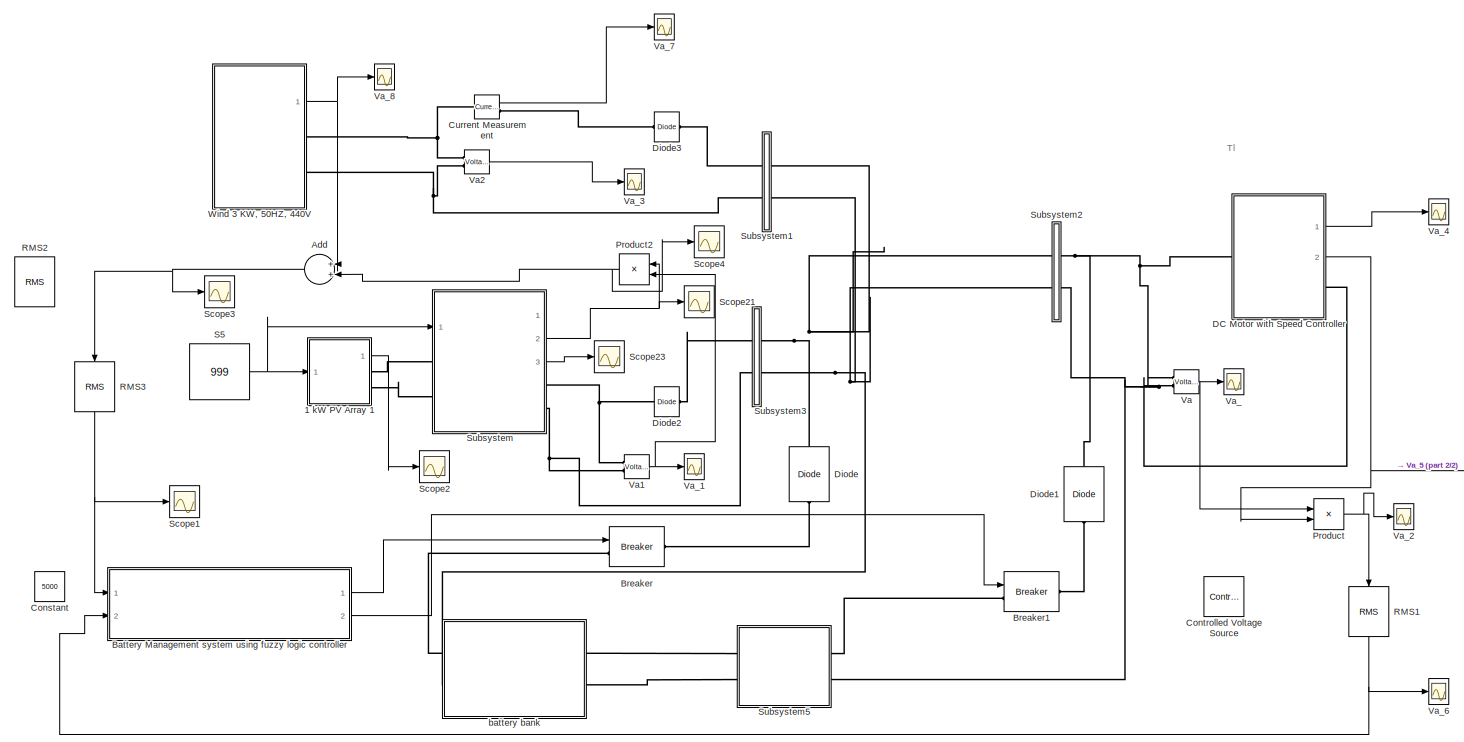
[diagram: root canvas - part 1/2, most of the canvas]
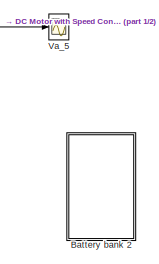
[diagram: root canvas - part 2/2, bottom right region]
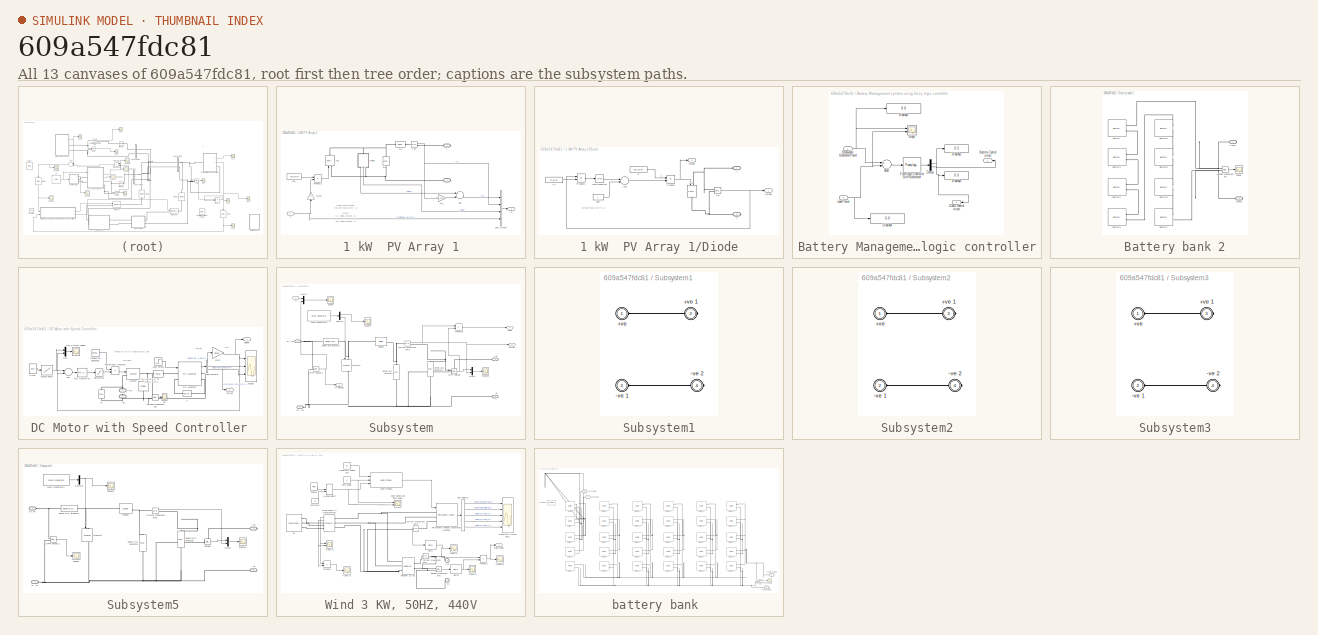
[diagram: thumbnail index - all 13 canvases of the model, root first then tree order]
MODEL slx_609a547fdc81
KIND model
CONFIG AbsTol = auto
CONFIG EnableMultiTasking = on
CONFIG FixedStep = auto
CONFIG MaxStep = auto
CONFIG MinStep = auto
CONFIG RelTol = 1e-3
CONFIG SampleTimeConstraint = Unconstrained
CONFIG Solver = ode45
CONFIG SolverName = ode45
CONFIG StartTime = 0.0
CONFIG StopTime = 5
BLOCK [SubSystem] 1 kW  PV Array 1
  Ports = [1, 1, 0, 0, 0, 0, 2]
  RequestExecContextInheritance = off
BLOCK [PMIOPort] 1 kW  PV Array 1/+
  Side = Right
BLOCK [PMIOPort] 1 kW  PV Array 1/-
  Port = 2
  Side = Right
BLOCK [Sum] 1 kW  PV Array 1/Add
  InputSameDT = off
  Inputs = +-
  OutDataTypeStr = Inherit: Inherit via internal rule
  Ports = [2, 1]
  SaturateOnIntegerOverflow = off
BLOCK [BusCreator] 1 kW  PV Array 1/Bus Creator
  DisplayOption = bar
  InheritFromInputs = on
  Inputs = 4
  Ports = [4, 1]
BLOCK [SubSystem] 1 kW  PV Array 1/Diode
  Ports = [0, 2, 0, 0, 0, 1, 1]
  RequestExecContextInheritance = off
BLOCK [PMIOPort] 1 kW  PV Array 1/Diode/A
  Side = Left
BLOCK [Sum] 1 kW  PV Array 1/Diode/Add
  InputSameDT = off
  Inputs = +-
  OutDataTypeStr = Inherit: Inherit via internal rule
  Ports = [2, 1]
  SaturateOnIntegerOverflow = off
BLOCK [Reference] 1 kW  PV Array 1/Diode/Id  REF=powerlib/Electrical
Sources/Controlled Current Source
  Ports = [1, 0, 0, 0, 0, 1, 1]
  SourceBlock = powerlib/Electrical\nSources/Controlled Current Source
  SourceProductBaseCode = PS
  SourceProductName = Simscape Electrical
  SourceType = Controlled Current Source
BLOCK [Outport] 1 kW  PV Array 1/Diode/Idiode
  IconDisplay = Port number
  Port = 2
BLOCK [Constant] 1 kW  PV Array 1/Diode/Is
  Value = Isat_array
BLOCK [PMIOPort] 1 kW  PV Array 1/Diode/K
  Port = 2
  Side = Right
BLOCK [Math] 1 kW  PV Array 1/Diode/Math Function
  Ports = [1, 1]
BLOCK [Product] 1 kW  PV Array 1/Diode/Product
  InputSameDT = off
  OutDataTypeStr = Inherit: Inherit via internal rule
  Ports = [2, 1]
  SaturateOnIntegerOverflow = off
BLOCK [Product] 1 kW  PV Array 1/Diode/Product1
  InputSameDT = off
  Inputs = */
  OutDataTypeStr = Inherit: Inherit via internal rule
  Ports = [2, 1]
  SaturateOnIntegerOverflow = off
BLOCK [Constant] 1 kW  PV Array 1/Diode/VT
  Value = VT_array
BLOCK [Reference] 1 kW  PV Array 1/Diode/Vd  REF=powerlib/Measurements/Voltage Measurement
  Ports = [0, 1, 0, 0, 0, 2]
  SourceBlock = powerlib/Measurements/Voltage Measurement
  SourceProductBaseCode = PS
  SourceProductName = Simscape Electrical
  SourceType = Voltage Measurement
BLOCK [Outport] 1 kW  PV Array 1/Diode/Vdiode
  IconDisplay = Port number
BLOCK [Constant] 1 kW  PV Array 1/Diode/one
BLOCK [Reference] 1 kW  PV Array 1/I_PV  REF=powerlib/Measurements/Current Measurement
  Ports = [0, 1, 0, 0, 0, 1, 1]
  SourceBlock = powerlib/Measurements/Current Measurement
  SourceProductBaseCode = PS
  SourceProductName = Simscape Electrical
  SourceType = Current Measurement
BLOCK [Reference] 1 kW  PV Array 1/Iph  REF=powerlib/Electrical
Sources/Controlled Current Source
  Ports = [1, 0, 0, 0, 0, 1, 1]
  SourceBlock = powerlib/Electrical\nSources/Controlled Current Source
  SourceProductBaseCode = PS
  SourceProductName = Simscape Electrical
  SourceType = Controlled Current Source
BLOCK [Constant] 1 kW  PV Array 1/Iph_
  Value = Iph_array
BLOCK [Inport] 1 kW  PV Array 1/Ir
  IconDisplay = Port number
BLOCK [Product] 1 kW  PV Array 1/Product1
  InputSameDT = off
  Inputs = **
  OutDataTypeStr = Inherit: Inherit via internal rule
  Ports = [2, 1]
  SaturateOnIntegerOverflow = off
BLOCK [Reference] 1 kW  PV Array 1/Rp  REF=powerlib/Elements/Series RLC Branch
  Ports = [0, 0, 0, 0, 0, 1, 1]
  SourceBlock = powerlib/Elements/Series RLC Branch
  SourceProductBaseCode = PS
  SourceProductName = Simscape Electrical
  SourceType = Series RLC Branch
BLOCK [Reference] 1 kW  PV Array 1/Rs  REF=powerlib/Elements/Series RLC Branch
  Ports = [0, 0, 0, 0, 0, 1, 1]
  SourceBlock = powerlib/Elements/Series RLC Branch
  SourceProductBaseCode = PS
  SourceProductName = Simscape Electrical
  SourceType = Series RLC Branch
BLOCK [Gain] 1 kW  PV Array 1/Rs_
  Gain = Rs_array
  OutDataTypeStr = Inherit: Inherit via internal rule
  ParamDataTypeStr = Inherit: Inherit via internal rule
  SaturateOnIntegerOverflow = off
BLOCK [Outport] 1 kW  PV Array 1/m
  IconDisplay = Port number
BLOCK [Gain] 1 kW  PV Array 1/t0_kW
  Gain = 1e-3
  OutDataTypeStr = Inherit: Inherit via internal rule
  ParamDataTypeStr = Inherit: Inherit via internal rule
  SaturateOnIntegerOverflow = off
BLOCK [Sum] Add
  InputSameDT = off
  OutDataTypeStr = Inherit: Inherit via internal rule
  Ports = [2, 1]
  SaturateOnIntegerOverflow = off
BLOCK [SubSystem] Battery Management system using fuzzy logic controller
  Ports = [2, 2]
  RequestExecContextInheritance = off
BLOCK [Sum] Battery Management system using fuzzy logic controller/Add
  InputSameDT = off
  Inputs = +-
  OutDataTypeStr = Inherit: Inherit via internal rule
  Ports = [2, 1]
  SaturateOnIntegerOverflow = off
BLOCK [Outport] Battery Management system using fuzzy logic controller/Battery Control circuit
  IconDisplay = Port number
BLOCK [Demux] Battery Management system using fuzzy logic controller/Demux
  DisplayOption = bar
  Outputs = 2
  Ports = [1, 2]
BLOCK [Display] Battery Management system using fuzzy logic controller/Display2
  Decimation = 1
  Ports = [1]
BLOCK [Display] Battery Management system using fuzzy logic controller/Display3
  Decimation = 1
  Ports = [1]
BLOCK [Display] Battery Management system using fuzzy logic controller/Display4
  Decimation = 1
  Ports = [1]
BLOCK [Display] Battery Management system using fuzzy logic controller/Display5
  Decimation = 1
  Ports = [1]
BLOCK [Reference] Battery Management system using fuzzy logic controller/Fuzzy Logic Controller with Ruleviewer  REF=fuzblock/Fuzzy Logic   (lib defined in mdl_858b3b3e7478)
Controller 
with Ruleviewer
  Ports = [1, 1]
  SourceBlock = fuzblock/Fuzzy Logic \nController \nwith Ruleviewer
  SourceProductBaseCode = FL
  SourceProductName = Fuzzy Logic Toolbox
  SourceType = Fuzzy Inference System
BLOCK [Outport] Battery Management system using fuzzy logic controller/LOAD control circuit
  IconDisplay = Port number
  Port = 2
BLOCK [Inport] Battery Management system using fuzzy logic controller/Load Power
  IconDisplay = Port number
  Port = 2
BLOCK [Inport] Battery Management system using fuzzy logic controller/Renewable Generated Power
  IconDisplay = Port number
BLOCK [Scope] Battery Management system using fuzzy logic controller/Scope
  Floating = off
  NumInputPorts = 2
  Ports = [2]
  ScopeSpecificationString = C++SS(StrPVP('Location','[5, 49, 1367, 727]'),StrPVP('Open','off'),MxPVP('AxesTitles',54,'struct(''axes1'',''%<SignalLabel>'',''axes2'',''%<SignalLabel>'')'),MxPVP('ScopeGraphics',57,'struct(''FigureColor'',''[0.5 0.5 0.5]'',''AxesColor'',''[0 0 0]'',''AxesTickColor'',''[1 1 1]'',''LineColors'',''[1 1 0;1 0 1;0 1 1;1 0 0;0 1 0;0 0 1]'',''LineStyles'',''-|-|-|-|-|-'',''LineWidths'',''[0.5 0.5 0.5 0...<+301ch>
BLOCK [SubSystem] Battery bank 2
  Ports = [0, 0, 0, 0, 0, 0, 2]
  RequestExecContextInheritance = off
BLOCK [Reference] Battery bank 2/Battery  REF=electricdrivelib/Extra Sources/Battery
  Ports = [0, 1, 0, 0, 0, 2]
  SourceBlock = electricdrivelib/Extra Sources/Battery
  SourceProductBaseCode = PS
  SourceProductName = Simscape Electrical
  SourceType = Battery
BLOCK [Reference] Battery bank 2/Battery1  REF=electricdrivelib/Extra Sources/Battery
  Ports = [0, 1, 0, 0, 0, 2]
  SourceBlock = electricdrivelib/Extra Sources/Battery
  SourceProductBaseCode = PS
  SourceProductName = Simscape Electrical
  SourceType = Battery
BLOCK [Reference] Battery bank 2/Battery2  REF=electricdrivelib/Extra Sources/Battery
  Ports = [0, 1, 0, 0, 0, 2]
  SourceBlock = electricdrivelib/Extra Sources/Battery
  SourceProductBaseCode = PS
  SourceProductName = Simscape Electrical
  SourceType = Battery
BLOCK [Reference] Battery bank 2/Battery3  REF=electricdrivelib/Extra Sources/Battery
  Ports = [0, 1, 0, 0, 0, 2]
  SourceBlock = electricdrivelib/Extra Sources/Battery
  SourceProductBaseCode = PS
  SourceProductName = Simscape Electrical
  SourceType = Battery
BLOCK [Reference] Battery bank 2/Battery4  REF=electricdrivelib/Extra Sources/Battery
  Ports = [0, 1, 0, 0, 0, 2]
  SourceBlock = electricdrivelib/Extra Sources/Battery
  SourceProductBaseCode = PS
  SourceProductName = Simscape Electrical
  SourceType = Battery
BLOCK [Reference] Battery bank 2/Battery5  REF=electricdrivelib/Extra Sources/Battery
  Ports = [0, 1, 0, 0, 0, 2]
  SourceBlock = electricdrivelib/Extra Sources/Battery
  SourceProductBaseCode = PS
  SourceProductName = Simscape Electrical
  SourceType = Battery
BLOCK [Reference] Battery bank 2/Battery6  REF=electricdrivelib/Extra Sources/Battery
  Ports = [0, 1, 0, 0, 0, 2]
  SourceBlock = electricdrivelib/Extra Sources/Battery
  SourceProductBaseCode = PS
  SourceProductName = Simscape Electrical
  SourceType = Battery
BLOCK [Reference] Battery bank 2/Battery7  REF=electricdrivelib/Extra Sources/Battery
  Ports = [0, 1, 0, 0, 0, 2]
  SourceBlock = electricdrivelib/Extra Sources/Battery
  SourceProductBaseCode = PS
  SourceProductName = Simscape Electrical
  SourceType = Battery
BLOCK [PMIOPort] Battery bank 2/Conn1
  Side = Right
BLOCK [PMIOPort] Battery bank 2/Conn2
  Port = 2
  Side = Right
BLOCK [Scope] Battery bank 2/Scope
  Floating = off
  NumInputPorts = 1
  Ports = [1]
  ScopeSpecificationString = C++SS(StrPVP('Location','[188, 365, 512, 604]'),StrPVP('Open','off'),MxPVP('AxesTitles',54,'struct(''axes1'',''%<SignalLabel>'')'),MxPVP('ScopeGraphics',57,'struct(''FigureColor'',''[0.5 0.5 0.5]'',''AxesColor'',''[0 0 0]'',''AxesTickColor'',''[1 1 1]'',''LineColors'',''[1 1 0;1 0 1;0 1 1;1 0 0;0 1 0;0 0 1]'',''LineStyles'',''-|-|-|-|-|-'',''LineWidths'',''[0.5 0.5 0.5 0.5 0.5 0.5]'',''MarkerStyle...<+192ch>
BLOCK [Reference] Battery bank 2/Voltage Measurement  REF=powerlib/Measurements/Voltage Measurement
  Ports = [0, 1, 0, 0, 0, 2]
  SourceBlock = powerlib/Measurements/Voltage Measurement
  SourceProductBaseCode = PS
  SourceProductName = Simscape Electrical
  SourceType = Voltage Measurement
  UserDataPersistent = on
BLOCK [Reference] Breaker  REF=powerlib/Elements/Breaker
  Ports = [1, 0, 0, 0, 0, 1, 1]
  SourceBlock = powerlib/Elements/Breaker
  SourceProductBaseCode = PS
  SourceProductName = Simscape Electrical
  SourceType = Breaker
BLOCK [Reference] Breaker1  REF=powerlib/Elements/Breaker
  Ports = [1, 0, 0, 0, 0, 1, 1]
  SourceBlock = powerlib/Elements/Breaker
  SourceProductBaseCode = PS
  SourceProductName = Simscape Electrical
  SourceType = Breaker
BLOCK [Constant] Constant
  Value = 5000
BLOCK [Reference] Controlled Voltage Source  REF=fl_lib/Electrical/Electrical Sources/Controlled Voltage
Source
  Ports = [0, 0, 0, 0, 0, 1, 2]
  SourceBlock = fl_lib/Electrical/Electrical Sources/Controlled Voltage\nSource
  SourceProductBaseCode = SS
  SourceProductName = Simscape
  SourceType = Controlled Voltage\nSource
BLOCK [Reference] Current Measurement  REF=powerlib/Measurements/Current Measurement
  Ports = [0, 1, 0, 0, 0, 1, 1]
  SourceBlock = powerlib/Measurements/Current Measurement
  SourceProductBaseCode = PS
  SourceProductName = Simscape Electrical
  SourceType = Current Measurement
  UserDataPersistent = on
BLOCK [SubSystem] DC Motor with Speed Controller 
  Ports = [0, 2, 0, 0, 0, 1, 1]
  RequestExecContextInheritance = off
BLOCK [PMIOPort] DC Motor with Speed Controller /+ Ve
  Side = Left
BLOCK [PMIOPort] DC Motor with Speed Controller /- Ve
  Port = 2
  Side = Right
BLOCK [Sum] DC Motor with Speed Controller /Add
  InputSameDT = off
  Inputs = +-
  OutDataTypeStr = Inherit: Inherit via internal rule
  Ports = [2, 1]
  SaturateOnIntegerOverflow = off
BLOCK [BusSelector] DC Motor with Speed Controller /Bus Selector
  OutputAsBus = off
  OutputSignals = Speed wm (rad/s),Armature current ia (A),Electrical torque Te (n m)
  Ports = [1, 3]
BLOCK [Clock] DC Motor with Speed Controller /Clock
  DisplayTime = on
BLOCK [Reference] DC Motor with Speed Controller /D1  REF=powerlib/Power
Electronics/Diode
  AttributesFormatString = \n
  Ports = [0, 0, 0, 0, 0, 1, 1]
  SourceBlock = powerlib/Power\nElectronics/Diode
  SourceProductBaseCode = PS
  SourceProductName = Simscape Electrical
  SourceType = Diode
BLOCK [Reference] DC Motor with Speed Controller /DC Machine  REF=powerlib/Machines/DC Machine
  Ports = [1, 1, 0, 0, 0, 2, 2]
  SourceBlock = powerlib/Machines/DC Machine
  SourceProductBaseCode = PS
  SourceProductName = Simscape Electrical
  SourceType = DC machine
BLOCK [Gain] DC Motor with Speed Controller /Gain
  Gain = 30/pi
  OutDataTypeStr = Inherit: Inherit via internal rule
  ParamDataTypeStr = Inherit: Inherit via internal rule
  SaturateOnIntegerOverflow = off
BLOCK [Step] DC Motor with Speed Controller /Load Torque
  After = 10
  SampleTime = 0
  Time = 0.75
BLOCK [Lookup] DC Motor with Speed Controller /Lookup Table
  InputValues = [0 0.5 1.0 1.1 1.5 2 3 3.5 5]
  SaturateOnIntegerOverflow = off
  Table = [0 1750 1750 1500 1500 1000 500 500 200]
BLOCK [Reference] DC Motor with Speed Controller /Ls  REF=powerlib/Elements/Parallel RLC Branch
  AttributesFormatString = \n
  Ports = [0, 0, 0, 0, 0, 1, 1]
  SourceBlock = powerlib/Elements/Parallel RLC Branch
  SourceProductBaseCode = PS
  SourceProductName = Simscape Electrical
  SourceType = Parallel RLC Branch
BLOCK [Reference] DC Motor with Speed Controller /Mosfet  REF=powerlib/Power
Electronics/Mosfet
  Ports = [1, 0, 0, 0, 0, 1, 1]
  SourceBlock = powerlib/Power\nElectronics/Mosfet
  SourceProductBaseCode = PS
  SourceProductName = Simscape Electrical
  SourceType = Mosfet
BLOCK [Mux] DC Motor with Speed Controller /Mux
  DisplayOption = bar
  Inputs = 2
  Ports = [2, 1]
BLOCK [Reference] DC Motor with Speed Controller /PID Controller  REF=simulink/Continuous/PID Controller
  Ports = [1, 1]
  SourceBlock = simulink/Continuous/PID Controller
  SourceProductBaseCode = SL
  SourceProductName = Simulink
  SourceType = PID 1dof
BLOCK [Scope] DC Motor with Speed Controller /Ref & Actual Speed
  Floating = off
  NumInputPorts = 1
  Ports = [1]
  ScopeSpecificationString = C++SS(StrPVP('Location','[464, 314, 1208, 544]'),StrPVP('Open','off'),StrPVP('ZoomMode','xonly'),MxPVP('AxesTitles',54,'struct(''axes1'',''%<SignalLabel>'')'),MxPVP('ScopeGraphics',57,'struct(''FigureColor'',''[0.5 0.5 0.5]'',''AxesColor'',''[0 0 0]'',''AxesTickColor'',''[1 1 1]'',''LineColors'',''[1 1 0;1 0 1;0 1 1;1 0 0;0 1 0;0 0 1]'',''LineStyles'',''-|-|-|-|-|-'',''LineWidths'',''[0.5 0.5 0.5 ...<+375ch>
BLOCK [RelationalOperator] DC Motor with Speed Controller /Relational Operator
  InputSameDT = off
  Operator = <=
  OutDataTypeStr = boolean
  Ports = [2, 1]
BLOCK [Reference] DC Motor with Speed Controller /Repeating Sequence  REF=simulink/Sources/Repeating
Sequence
  Ports = [0, 1]
  SourceBlock = simulink/Sources/Repeating\nSequence
  SourceProductBaseCode = SL
  SourceProductName = Simulink
  SourceType = Repeating table
BLOCK [Saturate] DC Motor with Speed Controller /Saturation
  InputPortMap = u0
  LowerLimit = 0
  Ports = [1, 1]
  UpperLimit = 1
BLOCK [Scope] DC Motor with Speed Controller /Scope1
  Floating = off
  NumInputPorts = 3
  Ports = [3]
  ScopeSpecificationString = C++SS(StrPVP('Location','[5, 49, 1359, 727]'),StrPVP('Open','off'),StrPVP('ZoomMode','xonly'),MxPVP('AxesTitles',54,'struct(''axes1'',''%<SignalLabel>'',''axes2'',''%<SignalLabel>'',''axes3'',''%<SignalLabel>'')'),MxPVP('ScopeGraphics',57,'struct(''FigureColor'',''[0.5 0.5 0.5]'',''AxesColor'',''[0 0 0]'',''AxesTickColor'',''[1 1 1]'',''LineColors'',''[1 1 0;1 0 1;0 1 1;1 0 0;0 1 0;0 0 1]'',''Line...<+444ch>
BLOCK [Outport] DC Motor with Speed Controller /Speed 
  IconDisplay = Port number
BLOCK [Reference] DC Motor with Speed Controller /V  REF=powerlib/Electrical
Sources/DC Voltage Source
  AttributesFormatString = \n
  Description = source block
  Ports = [0, 0, 0, 0, 0, 1, 1]
  SourceBlock = powerlib/Electrical\nSources/DC Voltage Source
  SourceProductBaseCode = PS
  SourceProductName = Simscape Electrical
  SourceType = DC Voltage Source
BLOCK [Reference] DC Motor with Speed Controller /V1  REF=powerlib/Electrical
Sources/DC Voltage Source
  AttributesFormatString = \n
  Description = source block
  Ports = [0, 0, 0, 0, 0, 1, 1]
  SourceBlock = powerlib/Electrical\nSources/DC Voltage Source
  SourceProductBaseCode = PS
  SourceProductName = Simscape Electrical
  SourceType = DC Voltage Source
BLOCK [Scope] DC Motor with Speed Controller /Va
  Floating = off
  NumInputPorts = 1
  Ports = [1]
  ScopeSpecificationString = C++SS(StrPVP('Location','[6, 48, 1030, 559]'),StrPVP('Open','off'),StrPVP('ZoomMode','xonly'),MxPVP('AxesTitles',54,'struct(''axes1'',''%<SignalLabel>'')'),MxPVP('ScopeGraphics',57,'struct(''FigureColor'',''[0.5 0.5 0.5]'',''AxesColor'',''[0 0 0]'',''AxesTickColor'',''[1 1 1]'',''LineColors'',''[1 1 0;1 0 1;0 1 1;1 0 0;0 1 0;0 0 1]'',''LineStyles'',''-|-|-|-|-|-'',''LineWidths'',''[0.5 0.5 0.5 0.5...<+338ch>
BLOCK [Reference] DC Motor with Speed Controller /Voltage Measurement  REF=powerlib/Measurements/Voltage Measurement
  Ports = [0, 1, 0, 0, 0, 2]
  SourceBlock = powerlib/Measurements/Voltage Measurement
  SourceProductBaseCode = PS
  SourceProductName = Simscape Electrical
  SourceType = Voltage Measurement
BLOCK [Outport] DC Motor with Speed Controller /current
  IconDisplay = Port number
  Port = 2
BLOCK [Reference] Diode  REF=powerlib/Power
Electronics/Diode
  Ports = [0, 0, 0, 0, 0, 1, 1]
  SourceBlock = powerlib/Power\nElectronics/Diode
  SourceProductBaseCode = PS
  SourceProductName = Simscape Electrical
  SourceType = Diode
BLOCK [Reference] Diode1  REF=powerlib/Power
Electronics/Diode
  Ports = [0, 0, 0, 0, 0, 1, 1]
  SourceBlock = powerlib/Power\nElectronics/Diode
  SourceProductBaseCode = PS
  SourceProductName = Simscape Electrical
  SourceType = Diode
BLOCK [Reference] Diode2  REF=powerlib/Power
Electronics/Diode
  Ports = [0, 0, 0, 0, 0, 1, 1]
  SourceBlock = powerlib/Power\nElectronics/Diode
  SourceProductBaseCode = PS
  SourceProductName = Simscape Electrical
  SourceType = Diode
BLOCK [Reference] Diode3  REF=powerlib/Power
Electronics/Diode
  Ports = [0, 0, 0, 0, 0, 1, 1]
  SourceBlock = powerlib/Power\nElectronics/Diode
  SourceProductBaseCode = PS
  SourceProductName = Simscape Electrical
  SourceType = Diode
BLOCK [Product] Product
  InputSameDT = off
  OutDataTypeStr = Inherit: Inherit via internal rule
  Ports = [2, 1]
  RndMeth = Floor
  SaturateOnIntegerOverflow = off
BLOCK [Product] Product2
  InputSameDT = off
  OutDataTypeStr = Inherit: Inherit via internal rule
  Ports = [2, 1]
  RndMeth = Floor
  SaturateOnIntegerOverflow = off
BLOCK [Reference] RMS1  REF=powerlib_meascontrol/Measurements/RMS
  Ports = [1, 1]
  SourceBlock = powerlib_meascontrol/Measurements/RMS
  SourceProductBaseCode = PS
  SourceProductName = Simscape Electrical
  SourceType = RMS
BLOCK [Reference] RMS2  REF=powerlib_meascontrol/Measurements/RMS
  Ports = [1, 1]
  SourceBlock = powerlib_meascontrol/Measurements/RMS
  SourceProductBaseCode = PS
  SourceProductName = Simscape Electrical
  SourceType = RMS
BLOCK [Reference] RMS3  REF=powerlib_meascontrol/Measurements/RMS
  Ports = [1, 1]
  SourceBlock = powerlib_meascontrol/Measurements/RMS
  SourceProductBaseCode = PS
  SourceProductName = Simscape Electrical
  SourceType = RMS
BLOCK [Constant] S5
  Value = 999
BLOCK [Scope] Scope1
  Floating = off
  NumInputPorts = 1
  Ports = [1]
  ScopeSpecificationString = C++SS(StrPVP('Location','[6, 57, 1360, 736]'),StrPVP('Open','off'),StrPVP('ZoomMode','xonly'),MxPVP('AxesTitles',54,'struct(''axes1'',''%<SignalLabel>'')'),MxPVP('ScopeGraphics',57,'struct(''FigureColor'',''[1 1 1]'',''AxesColor'',''[1 1 1]'',''AxesTickColor'',''[0 0 0]'',''LineColors'',''[1 0 0;1 0 1;0 1 1;1 0 0;0 1 0;0 0 1]'',''LineStyles'',''-|-|-|-|-|-'',''LineWidths'',''[0.5 0.5 0.5 0.5 0.5 0...<+291ch>
BLOCK [Scope] Scope2
  Floating = off
  NumInputPorts = 1
  Ports = [1]
  ScopeSpecificationString = C++SS(StrPVP('Location','[188, 365, 512, 604]'),StrPVP('Open','off'),MxPVP('AxesTitles',54,'struct(''axes1'',''%<SignalLabel>'')'),MxPVP('ScopeGraphics',57,'struct(''FigureColor'',''[1 1 1]'',''AxesColor'',''[1 1 1]'',''AxesTickColor'',''[0 0 0]'',''LineColors'',''[0.0784313725490196 0.168627450980392 0.549019607843137;1 0 1;0 1 1;1 0 0;0 1 0;0 0 1]'',''LineStyles'',''-|-|-|-|-|-'',''LineWidths'',...<+312ch>
BLOCK [Scope] Scope21
  Floating = off
  NumInputPorts = 1
  Ports = [1]
  ScopeSpecificationString = C++SS(StrPVP('Location','[188, 365, 512, 604]'),StrPVP('Open','off'),MxPVP('AxesTitles',54,'struct(''axes1'',''%<SignalLabel>'')'),MxPVP('ScopeGraphics',57,'struct(''FigureColor'',''[1 1 1]'',''AxesColor'',''[1 1 1]'',''AxesTickColor'',''[0 0 0]'',''LineColors'',''[0.0784313725490196 0.168627450980392 0.549019607843137;1 0 1;0 1 1;1 0 0;0 1 0;0 0 1]'',''LineStyles'',''-|-|-|-|-|-'',''LineWidths'',...<+313ch>
BLOCK [Scope] Scope23
  Floating = off
  NumInputPorts = 1
  Ports = [1]
  ScopeSpecificationString = C++SS(StrPVP('Location','[188, 365, 512, 604]'),StrPVP('Open','off'),MxPVP('AxesTitles',54,'struct(''axes1'',''%<SignalLabel>'')'),MxPVP('ScopeGraphics',57,'struct(''FigureColor'',''[1 1 1]'',''AxesColor'',''[1 1 1]'',''AxesTickColor'',''[0 0 0]'',''LineColors'',''[0.0784313725490196 0.168627450980392 0.549019607843137;1 0 1;0 1 1;1 0 0;0 1 0;0 0 1]'',''LineStyles'',''-|-|-|-|-|-'',''LineWidths'',...<+314ch>
BLOCK [Scope] Scope3
  Floating = off
  NumInputPorts = 1
  Ports = [1]
  ScopeSpecificationString = C++SS(StrPVP('Location','[188, 365, 512, 604]'),StrPVP('Open','off'),MxPVP('AxesTitles',54,'struct(''axes1'',''%<SignalLabel>'')'),MxPVP('ScopeGraphics',57,'struct(''FigureColor'',''[1 1 1]'',''AxesColor'',''[1 1 1]'',''AxesTickColor'',''[0 0 0]'',''LineColors'',''[0.0784313725490196 0.168627450980392 0.549019607843137;1 0 1;0 1 1;1 0 0;0 1 0;0 0 1]'',''LineStyles'',''-|-|-|-|-|-'',''LineWidths'',...<+311ch>
BLOCK [Scope] Scope4
  Floating = off
  NumInputPorts = 1
  Ports = [1]
  ScopeSpecificationString = C++SS(StrPVP('Location','[188, 365, 512, 604]'),StrPVP('Open','off'),MxPVP('AxesTitles',54,'struct(''axes1'',''%<SignalLabel>'')'),MxPVP('ScopeGraphics',57,'struct(''FigureColor'',''[1 1 1]'',''AxesColor'',''[1 1 1]'',''AxesTickColor'',''[0 0 0]'',''LineColors'',''[0.0784313725490196 0.168627450980392 0.549019607843137;1 0 1;0 1 1;1 0 0;0 1 0;0 0 1]'',''LineStyles'',''-|-|-|-|-|-'',''LineWidths'',...<+311ch>
BLOCK [SubSystem] Subsystem
  Ports = [1, 3, 0, 0, 0, 2, 2]
  RequestExecContextInheritance = off
BLOCK [PMIOPort] Subsystem/+ Ve
  Port = 3
  Side = Right
BLOCK [PMIOPort] Subsystem/- Ve
  Port = 4
  Side = Right
BLOCK [Outport] Subsystem/Current 
  IconDisplay = Port number
  Port = 2
BLOCK [Reference] Subsystem/Current Measurement8  REF=powerlib/Measurements/Current Measurement
  Ports = [0, 1, 0, 0, 0, 1, 1]
  SourceBlock = powerlib/Measurements/Current Measurement
  SourceProductBaseCode = PS
  SourceProductName = Simscape Electrical
  SourceType = Current Measurement
BLOCK [Demux] Subsystem/Demux4
  DisplayOption = bar
  Outputs = 2
  Ports = [1, 2]
BLOCK [Reference] Subsystem/Diode9  REF=powerlib/Power
Electronics/Diode
  Ports = [0, 1, 0, 0, 0, 1, 1]
  SourceBlock = powerlib/Power\nElectronics/Diode
  SourceProductBaseCode = PS
  SourceProductName = Simscape Electrical
  SourceType = Diode
BLOCK [Inport] Subsystem/Ir
  IconDisplay = Port number
BLOCK [Reference] Subsystem/MPPT Voltage   REF=powerlib/Measurements/Voltage Measurement
  Ports = [0, 1, 0, 0, 0, 2]
  SourceBlock = powerlib/Measurements/Voltage Measurement
  SourceProductBaseCode = PS
  SourceProductName = Simscape Electrical
  SourceType = Voltage Measurement
BLOCK [Reference] Subsystem/MPPT Voltage 1  REF=powerlib/Measurements/Voltage Measurement
  Ports = [0, 1, 0, 0, 0, 2]
  SourceBlock = powerlib/Measurements/Voltage Measurement
  SourceProductBaseCode = PS
  SourceProductName = Simscape Electrical
  SourceType = Voltage Measurement
BLOCK [Reference] Subsystem/Mosfet5  REF=powerlib/Power
Electronics/Mosfet
  Ports = [1, 1, 0, 0, 0, 1, 1]
  SourceBlock = powerlib/Power\nElectronics/Mosfet
  SourceProductBaseCode = PS
  SourceProductName = Simscape Electrical
  SourceType = Mosfet
BLOCK [Mux] Subsystem/Mux12
  DisplayOption = bar
  Inputs = 2
  Ports = [2, 1]
BLOCK [Mux] Subsystem/Mux14
  DisplayOption = bar
  Inputs = 2
  Ports = [2, 1]
BLOCK [PMIOPort] Subsystem/PV + Ve
  Side = Left
BLOCK [PMIOPort] Subsystem/PV - Ve
  Port = 2
  Side = Left
BLOCK [Outport] Subsystem/PV voltage 
  IconDisplay = Port number
  Port = 3
BLOCK [Reference] Subsystem/PWM Generator4  REF=powerlib_extras/Control 
Blocks/PWM Generator
  Ports = [0, 1]
  SourceBlock = powerlib_extras/Control \nBlocks/PWM Generator
  SourceProductBaseCode = PS
  SourceProductName = Simscape Electrical
  SourceType = PWM Generator
BLOCK [Outport] Subsystem/Power
  IconDisplay = Port number
BLOCK [Product] Subsystem/Product8
  InputSameDT = off
  OutDataTypeStr = Inherit: Inherit via internal rule
  Ports = [2, 1]
  SaturateOnIntegerOverflow = off
BLOCK [Scope] Subsystem/Scope1
  Floating = off
  NumInputPorts = 1
  Ports = [1]
  ScopeSpecificationString = C++SS(StrPVP('Location','[5, 48, 1367, 727]'),StrPVP('Open','off'),MxPVP('AxesTitles',54,'struct(''axes1'',''%<SignalLabel>'')'),MxPVP('ScopeGraphics',57,'struct(''FigureColor'',''[1 1 1]'',''AxesColor'',''[1 1 1]'',''AxesTickColor'',''[0 0 0]'',''LineColors'',''[0 0 1;1 0 0;0 1 1;1 0 0;0 1 0;0 0 1]'',''LineStyles'',''-|-|-|-|-|-'',''LineWidths'',''[2 0.5 0.5 0.5 0.5 0.5]'',''MarkerStyles'',''none...<+342ch>
BLOCK [Scope] Subsystem/Scope34
  Floating = off
  NumInputPorts = 1
  Ports = [1]
  ScopeSpecificationString = C++SS(StrPVP('Location','[5, 49, 1367, 727]'),StrPVP('Open','off'),StrPVP('ZoomMode','xonly'),MxPVP('AxesTitles',54,'struct(''axes1'',''ANFIS BASED MPPT OF PV VOLTAGE AND CURRENT'')'),MxPVP('ScopeGraphics',57,'struct(''FigureColor'',''[1 1 1]'',''AxesColor'',''[1 1 1]'',''AxesTickColor'',''[0 0 0]'',''LineColors'',''[0 0 1;1 0 0;0 1 1;1 0 0;0 1 0;0 0 1]'',''LineStyles'',''-|-|-|-|-|-'',''LineWidth...<+393ch>
BLOCK [Scope] Subsystem/Scope37
  Floating = off
  NumInputPorts = 1
  Ports = [1]
  ScopeSpecificationString = C++SS(StrPVP('Location','[5, 48, 1371, 727]'),StrPVP('Open','off'),MxPVP('AxesTitles',54,'struct(''axes1'',''%<SignalLabel>'')'),MxPVP('ScopeGraphics',57,'struct(''FigureColor'',''[1 1 1]'',''AxesColor'',''[1 1 1]'',''AxesTickColor'',''[0 0 0]'',''LineColors'',''[0 0 1;1 0 0;0 1 1;1 0 0;0 1 0;0 0 1]'',''LineStyles'',''-|-|-|-|-|-'',''LineWidths'',''[2 0.5 0.5 0.5 0.5 0.5]'',''MarkerStyles'',''none...<+342ch>
BLOCK [Reference] Subsystem/Series RLC Branch13  REF=powerlib/Elements/Series RLC Branch
  Ports = [0, 0, 0, 0, 0, 1, 1]
  SourceBlock = powerlib/Elements/Series RLC Branch
  SourceProductBaseCode = PS
  SourceProductName = Simscape Electrical
  SourceType = Series RLC Branch
BLOCK [Reference] Subsystem/Series RLC Branch14  REF=powerlib/Elements/Series RLC Branch
  Ports = [0, 0, 0, 0, 0, 1, 1]
  SourceBlock = powerlib/Elements/Series RLC Branch
  SourceProductBaseCode = PS
  SourceProductName = Simscape Electrical
  SourceType = Series RLC Branch
BLOCK [Reference] Subsystem/Series RLC Branch15  REF=powerlib/Elements/Series RLC Branch
  Ports = [0, 0, 0, 0, 0, 1, 1]
  SourceBlock = powerlib/Elements/Series RLC Branch
  SourceProductBaseCode = PS
  SourceProductName = Simscape Electrical
  SourceType = Series RLC Branch
BLOCK [SubSystem] Subsystem1
  Ports = [0, 0, 0, 0, 0, 2, 2]
  RequestExecContextInheritance = off
BLOCK [PMIOPort] Subsystem1/+ve 
  Side = Left
BLOCK [PMIOPort] Subsystem1/+ve 1
  Port = 3
  Side = Right
BLOCK [PMIOPort] Subsystem1/-ve 1
  Port = 2
  Side = Left
BLOCK [PMIOPort] Subsystem1/-ve 2
  Port = 4
  Side = Right
BLOCK [SubSystem] Subsystem2
  Ports = [0, 0, 0, 0, 0, 2, 2]
  RequestExecContextInheritance = off
BLOCK [PMIOPort] Subsystem2/+ve 
  Side = Left
BLOCK [PMIOPort] Subsystem2/+ve 1
  Port = 3
  Side = Right
BLOCK [PMIOPort] Subsystem2/-ve 1
  Port = 2
  Side = Left
BLOCK [PMIOPort] Subsystem2/-ve 2
  Port = 4
  Side = Right
BLOCK [SubSystem] Subsystem3
  Ports = [0, 0, 0, 0, 0, 2, 2]
  RequestExecContextInheritance = off
BLOCK [PMIOPort] Subsystem3/+ve 
  Side = Left
BLOCK [PMIOPort] Subsystem3/+ve 1
  Port = 3
  Side = Right
BLOCK [PMIOPort] Subsystem3/-ve 1
  Port = 2
  Side = Left
BLOCK [PMIOPort] Subsystem3/-ve 2
  Port = 4
  Side = Right
BLOCK [SubSystem] Subsystem5
  Ports = [0, 0, 0, 0, 0, 2, 2]
  RequestExecContextInheritance = off
BLOCK [PMIOPort] Subsystem5/+ Ve
  Port = 3
  Side = Right
BLOCK [PMIOPort] Subsystem5/- Ve
  Port = 4
  Side = Right
BLOCK [PMIOPort] Subsystem5/B + Ve
  Side = Left
BLOCK [PMIOPort] Subsystem5/B - Ve
  Port = 2
  Side = Left
BLOCK [Reference] Subsystem5/Current Measurement8  REF=powerlib/Measurements/Current Measurement
  Ports = [0, 1, 0, 0, 0, 1, 1]
  SourceBlock = powerlib/Measurements/Current Measurement
  SourceProductBaseCode = PS
  SourceProductName = Simscape Electrical
  SourceType = Current Measurement
BLOCK [Demux] Subsystem5/Demux4
  DisplayOption = bar
  Outputs = 2
  Ports = [1, 2]
BLOCK [Reference] Subsystem5/Diode9  REF=powerlib/Power
Electronics/Diode
  Ports = [0, 1, 0, 0, 0, 1, 1]
  SourceBlock = powerlib/Power\nElectronics/Diode
  SourceProductBaseCode = PS
  SourceProductName = Simscape Electrical
  SourceType = Diode
BLOCK [Reference] Subsystem5/MPPT Voltage 1  REF=powerlib/Measurements/Voltage Measurement
  Ports = [0, 1, 0, 0, 0, 2]
  SourceBlock = powerlib/Measurements/Voltage Measurement
  SourceProductBaseCode = PS
  SourceProductName = Simscape Electrical
  SourceType = Voltage Measurement
BLOCK [Reference] Subsystem5/Mosfet5  REF=powerlib/Power
Electronics/Mosfet
  Ports = [1, 1, 0, 0, 0, 1, 1]
  SourceBlock = powerlib/Power\nElectronics/Mosfet
  SourceProductBaseCode = PS
  SourceProductName = Simscape Electrical
  SourceType = Mosfet
BLOCK [Mux] Subsystem5/Mux12
  DisplayOption = bar
  Inputs = 2
  Ports = [2, 1]
BLOCK [Reference] Subsystem5/PWM Generator4  REF=powerlib_extras/Control 
Blocks/PWM Generator
  Ports = [0, 1]
  SourceBlock = powerlib_extras/Control \nBlocks/PWM Generator
  SourceProductBaseCode = PS
  SourceProductName = Simscape Electrical
  SourceType = PWM Generator
BLOCK [Scope] Subsystem5/Scope1
  Floating = off
  NumInputPorts = 1
  Ports = [1]
  ScopeSpecificationString = C++SS(StrPVP('Location','[5, 48, 1367, 727]'),StrPVP('Open','off'),MxPVP('AxesTitles',54,'struct(''axes1'',''%<SignalLabel>'')'),MxPVP('ScopeGraphics',57,'struct(''FigureColor'',''[1 1 1]'',''AxesColor'',''[1 1 1]'',''AxesTickColor'',''[0 0 0]'',''LineColors'',''[0 0 1;1 0 0;0 1 1;1 0 0;0 1 0;0 0 1]'',''LineStyles'',''-|-|-|-|-|-'',''LineWidths'',''[2 0.5 0.5 0.5 0.5 0.5]'',''MarkerStyles'',''none...<+344ch>
BLOCK [Scope] Subsystem5/Scope34
  Floating = off
  NumInputPorts = 1
  Ports = [1]
  ScopeSpecificationString = C++SS(StrPVP('Location','[5, 49, 1367, 727]'),StrPVP('Open','off'),StrPVP('ZoomMode','yonly'),MxPVP('AxesTitles',54,'struct(''axes1'',''ANFIS BASED MPPT OF PV VOLTAGE AND CURRENT'')'),MxPVP('ScopeGraphics',57,'struct(''FigureColor'',''[1 1 1]'',''AxesColor'',''[1 1 1]'',''AxesTickColor'',''[0 0 0]'',''LineColors'',''[0 0 1;1 0 0;0 1 1;1 0 0;0 1 0;0 0 1]'',''LineStyles'',''-|-|-|-|-|-'',''LineWidth...<+391ch>
BLOCK [Scope] Subsystem5/Scope37
  Floating = off
  NumInputPorts = 1
  Ports = [1]
  ScopeSpecificationString = C++SS(StrPVP('Location','[5, 48, 1371, 727]'),StrPVP('Open','off'),MxPVP('AxesTitles',54,'struct(''axes1'',''%<SignalLabel>'')'),MxPVP('ScopeGraphics',57,'struct(''FigureColor'',''[1 1 1]'',''AxesColor'',''[1 1 1]'',''AxesTickColor'',''[0 0 0]'',''LineColors'',''[0 0 1;1 0 0;0 1 1;1 0 0;0 1 0;0 0 1]'',''LineStyles'',''-|-|-|-|-|-'',''LineWidths'',''[2 0.5 0.5 0.5 0.5 0.5]'',''MarkerStyles'',''none...<+342ch>
BLOCK [Reference] Subsystem5/Series RLC Branch13  REF=powerlib/Elements/Series RLC Branch
  Ports = [0, 0, 0, 0, 0, 1, 1]
  SourceBlock = powerlib/Elements/Series RLC Branch
  SourceProductBaseCode = PS
  SourceProductName = Simscape Electrical
  SourceType = Series RLC Branch
BLOCK [Reference] Subsystem5/Series RLC Branch14  REF=powerlib/Elements/Series RLC Branch
  Ports = [0, 0, 0, 0, 0, 1, 1]
  SourceBlock = powerlib/Elements/Series RLC Branch
  SourceProductBaseCode = PS
  SourceProductName = Simscape Electrical
  SourceType = Series RLC Branch
BLOCK [Reference] Subsystem5/Series RLC Branch15  REF=powerlib/Elements/Series RLC Branch
  Ports = [0, 0, 0, 0, 0, 1, 1]
  SourceBlock = powerlib/Elements/Series RLC Branch
  SourceProductBaseCode = PS
  SourceProductName = Simscape Electrical
  SourceType = Series RLC Branch
BLOCK [Reference] Subsystem5/Voltage   REF=powerlib/Measurements/Voltage Measurement
  Ports = [0, 1, 0, 0, 0, 2]
  SourceBlock = powerlib/Measurements/Voltage Measurement
  SourceProductBaseCode = PS
  SourceProductName = Simscape Electrical
  SourceType = Voltage Measurement
BLOCK [Reference] Va  REF=powerlib/Measurements/Voltage Measurement
  AttributesFormatString = \n
  Ports = [0, 1, 0, 0, 0, 2]
  SourceBlock = powerlib/Measurements/Voltage Measurement
  SourceProductBaseCode = PS
  SourceProductName = Simscape Electrical
  SourceType = Voltage Measurement
  Tag = PoWeRsYsTeMmEaSuReMeNt
BLOCK [Reference] Va1  REF=powerlib/Measurements/Voltage Measurement
  AttributesFormatString = \n
  Ports = [0, 1, 0, 0, 0, 2]
  SourceBlock = powerlib/Measurements/Voltage Measurement
  SourceProductBaseCode = PS
  SourceProductName = Simscape Electrical
  SourceType = Voltage Measurement
  Tag = PoWeRsYsTeMmEaSuReMeNt
BLOCK [Reference] Va2  REF=powerlib/Measurements/Voltage Measurement
  AttributesFormatString = \n
  Ports = [0, 1, 0, 0, 0, 2]
  SourceBlock = powerlib/Measurements/Voltage Measurement
  SourceProductBaseCode = PS
  SourceProductName = Simscape Electrical
  SourceType = Voltage Measurement
  Tag = PoWeRsYsTeMmEaSuReMeNt
BLOCK [Scope] Va_
  Floating = off
  NumInputPorts = 1
  Ports = [1]
  ScopeSpecificationString = C++SS(StrPVP('Location','[6, 49, 1360, 727]'),StrPVP('Open','off'),StrPVP('TickLabels','on'),StrPVP('ZoomMode','xonly'),MxPVP('AxesTitles',54,'struct(''axes1'',''%<SignalLabel>'')'),MxPVP('ScopeGraphics',57,'struct(''FigureColor'',''[0.5 0.5 0.5]'',''AxesColor'',''[0 0 0]'',''AxesTickColor'',''[1 1 1]'',''LineColors'',''[1 1 0;1 0 1;0 1 1;1 0 0;0 1 0;0 0 1]'',''LineStyles'',''-|-|-|-|-|-'',''LineW...<+457ch>  <repeated x3 — deduplicated; at blocks: Va_, Va_1, Va_8>
BLOCK [Scope] Va_1
  Floating = off
  NumInputPorts = 1
  Ports = [1]
BLOCK [Scope] Va_2
  Floating = off
  NumInputPorts = 1
  Ports = [1]
  ScopeSpecificationString = C++SS(StrPVP('Location','[20, 454, 657, 637]'),StrPVP('Open','off'),StrPVP('TickLabels','on'),StrPVP('ZoomMode','xonly'),MxPVP('AxesTitles',54,'struct(''axes1'',''5HP Motor load waveform'')'),MxPVP('ScopeGraphics',57,'struct(''FigureColor'',''[0.5 0.5 0.5]'',''AxesColor'',''[0 0 0]'',''AxesTickColor'',''[1 1 1]'',''LineColors'',''[1 1 0;1 0 1;0 1 1;1 0 0;0 1 0;0 0 1]'',''LineStyles'',''-|-|-|-|-|-...<+464ch>
BLOCK [Scope] Va_3
  Floating = off
  NumInputPorts = 1
  Ports = [1]
  ScopeSpecificationString = C++SS(StrPVP('Location','[6, 49, 1360, 727]'),StrPVP('Open','off'),StrPVP('TickLabels','on'),StrPVP('ZoomMode','xonly'),MxPVP('AxesTitles',54,'struct(''axes1'',''%<SignalLabel>'')'),MxPVP('ScopeGraphics',57,'struct(''FigureColor'',''[0.5 0.5 0.5]'',''AxesColor'',''[0 0 0]'',''AxesTickColor'',''[1 1 1]'',''LineColors'',''[1 1 0;1 0 1;0 1 1;1 0 0;0 1 0;0 0 1]'',''LineStyles'',''-|-|-|-|-|-'',''LineW...<+459ch>
BLOCK [Scope] Va_4
  Floating = off
  NumInputPorts = 1
  Ports = [1]
  ScopeSpecificationString = C++SS(StrPVP('Location','[5, 49, 1359, 727]'),StrPVP('Open','off'),StrPVP('TickLabels','on'),StrPVP('ZoomMode','xonly'),MxPVP('AxesTitles',54,'struct(''axes1'',''%<SignalLabel>'')'),MxPVP('ScopeGraphics',57,'struct(''FigureColor'',''[0.5 0.5 0.5]'',''AxesColor'',''[0 0 0]'',''AxesTickColor'',''[1 1 1]'',''LineColors'',''[1 1 0;1 0 1;0 1 1;1 0 0;0 1 0;0 0 1]'',''LineStyles'',''-|-|-|-|-|-'',''LineW...<+456ch>
BLOCK [Scope] Va_5
  Floating = off
  NumInputPorts = 1
  Ports = [1]
  ScopeSpecificationString = C++SS(StrPVP('Location','[1, 49, 1367, 727]'),StrPVP('Open','off'),StrPVP('TickLabels','on'),StrPVP('ZoomMode','xonly'),MxPVP('AxesTitles',54,'struct(''axes1'',''5HP Motor load waveform'')'),MxPVP('ScopeGraphics',57,'struct(''FigureColor'',''[0.5 0.5 0.5]'',''AxesColor'',''[0 0 0]'',''AxesTickColor'',''[1 1 1]'',''LineColors'',''[1 1 0;1 0 1;0 1 1;1 0 0;0 1 0;0 0 1]'',''LineStyles'',''-|-|-|-|-|-'...<+462ch>
BLOCK [Scope] Va_6
  Floating = off
  NumInputPorts = 1
  Ports = [1]
  ScopeSpecificationString = C++SS(StrPVP('Location','[20, 454, 657, 637]'),StrPVP('Open','off'),StrPVP('TickLabels','on'),StrPVP('ZoomMode','xonly'),MxPVP('AxesTitles',54,'struct(''axes1'',''5HP Motor load waveform'')'),MxPVP('ScopeGraphics',57,'struct(''FigureColor'',''[0.5 0.5 0.5]'',''AxesColor'',''[0 0 0]'',''AxesTickColor'',''[1 1 1]'',''LineColors'',''[1 1 0;1 0 1;0 1 1;1 0 0;0 1 0;0 0 1]'',''LineStyles'',''-|-|-|-|-|-...<+471ch>
BLOCK [Scope] Va_7
  Floating = off
  NumInputPorts = 1
  Ports = [1]
  ScopeSpecificationString = C++SS(StrPVP('Location','[6, 49, 1360, 727]'),StrPVP('Open','off'),StrPVP('TickLabels','on'),StrPVP('ZoomMode','xonly'),MxPVP('AxesTitles',54,'struct(''axes1'',''%<SignalLabel>'')'),MxPVP('ScopeGraphics',57,'struct(''FigureColor'',''[0.5 0.5 0.5]'',''AxesColor'',''[0 0 0]'',''AxesTickColor'',''[1 1 1]'',''LineColors'',''[1 1 0;1 0 1;0 1 1;1 0 0;0 1 0;0 0 1]'',''LineStyles'',''-|-|-|-|-|-'',''LineW...<+464ch>
BLOCK [Scope] Va_8
  Floating = off
  NumInputPorts = 1
  Ports = [1]
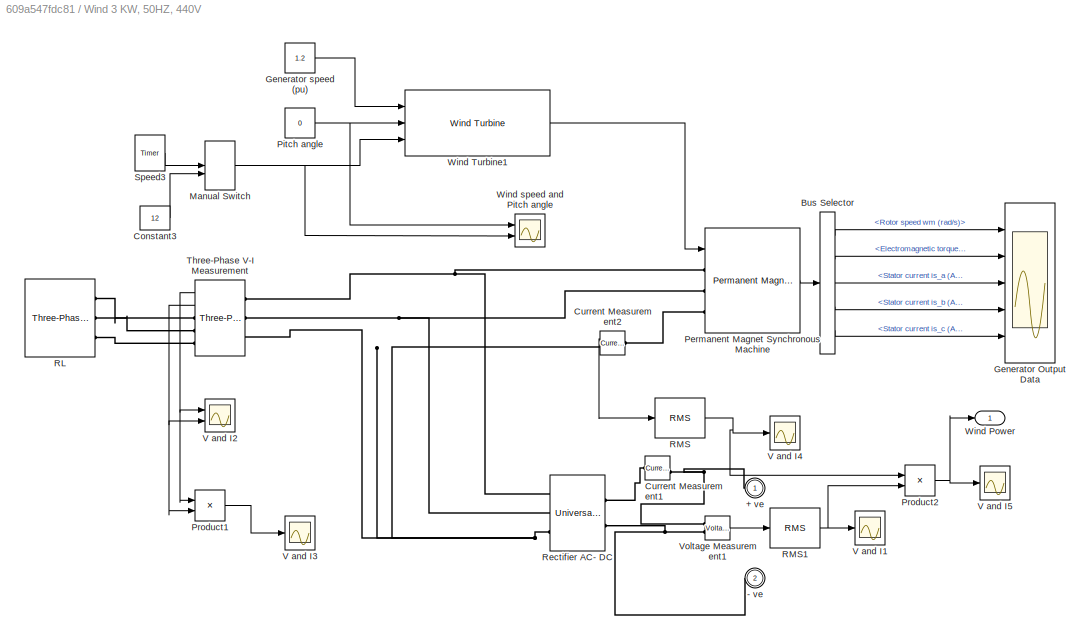
BLOCK [SubSystem] Wind 3 KW, 50HZ, 440V
  Ports = [0, 1, 0, 0, 0, 0, 2]
  RequestExecContextInheritance = off
BLOCK [PMIOPort] Wind 3 KW, 50HZ, 440V/+ ve
  Side = Right
BLOCK [PMIOPort] Wind 3 KW, 50HZ, 440V/- ve
  Port = 2
  Side = Right
BLOCK [BusSelector] Wind 3 KW, 50HZ, 440V/Bus Selector
  OutputAsBus = off
  OutputSignals = Rotor speed wm (rad/s),Electromagnetic torque Te (N*m),Stator current is_a (A),Stator current is_b (A),Stator current is_c (A)
  Ports = [1, 5]
BLOCK [Constant] Wind 3 KW, 50HZ, 440V/Constant3
  Value = 12
BLOCK [Reference] Wind 3 KW, 50HZ, 440V/Current Measurement1  REF=powerlib/Measurements/Current Measurement
  Ports = [0, 1, 0, 0, 0, 1, 1]
  SourceBlock = powerlib/Measurements/Current Measurement
  SourceProductBaseCode = PS
  SourceProductName = Simscape Electrical
  SourceType = Current Measurement
  UserDataPersistent = on
BLOCK [Reference] Wind 3 KW, 50HZ, 440V/Current Measurement2  REF=powerlib/Measurements/Current Measurement
  Ports = [0, 1, 0, 0, 0, 1, 1]
  SourceBlock = powerlib/Measurements/Current Measurement
  SourceProductBaseCode = PS
  SourceProductName = Simscape Electrical
  SourceType = Current Measurement
  UserDataPersistent = on
BLOCK [Scope] Wind 3 KW, 50HZ, 440V/Generator Output Data
  Floating = off
  NumInputPorts = 5
  Ports = [5]
  ScopeSpecificationString = C++SS(StrPVP('Location','[6, 53, 1286, 759]'),StrPVP('Open','off'),MxPVP('AxesTitles',54,'struct(''axes1'',''%<SignalLabel>'',''axes2'',''%<SignalLabel>'',''axes3'',''%<SignalLabel>'',''axes4'',''%<SignalLabel>'',''axes5'',''%<SignalLabel>'')'),MxPVP('ScopeGraphics',57,'struct(''FigureColor'',''[0.501960784313725 0.501960784313725 0.501960784313725]'',''AxesColor'',''[0 0 0]'',''AxesTickColor'',''...<+500ch>
BLOCK [Constant] Wind 3 KW, 50HZ, 440V/Generator speed (pu)
  Value = 1.2
BLOCK [ManualSwitch] Wind 3 KW, 50HZ, 440V/Manual Switch
  CurrentSetting = 0
BLOCK [Reference] Wind 3 KW, 50HZ, 440V/Permanent Magnet Synchronous Machine  REF=powerlib/Machines/Permanent Magnet
Synchronous Machine
  Ports = [1, 1, 0, 0, 0, 3]
  SourceBlock = powerlib/Machines/Permanent Magnet\nSynchronous Machine
  SourceProductBaseCode = PS
  SourceProductName = Simscape Electrical
  SourceType = Permanent Magnet Synchronous Machine
BLOCK [Constant] Wind 3 KW, 50HZ, 440V/Pitch angle
  Value = 0
BLOCK [Product] Wind 3 KW, 50HZ, 440V/Product1
  InputSameDT = off
  OutDataTypeStr = Inherit: Inherit via internal rule
  Ports = [2, 1]
  RndMeth = Floor
  SaturateOnIntegerOverflow = off
BLOCK [Product] Wind 3 KW, 50HZ, 440V/Product2
  InputSameDT = off
  OutDataTypeStr = Inherit: Inherit via internal rule
  Ports = [2, 1]
  RndMeth = Floor
  SaturateOnIntegerOverflow = off
BLOCK [Reference] Wind 3 KW, 50HZ, 440V/RL   REF=powerlib/Elements/Three-Phase
Parallel RLC Load
  AttributesFormatString = \n
  Ports = [0, 0, 0, 0, 0, 3]
  SourceBlock = powerlib/Elements/Three-Phase\nParallel RLC Load
  SourceProductBaseCode = PS
  SourceProductName = Simscape Electrical
  SourceType = Three-Phase Parallel RLC Load
BLOCK [Reference] Wind 3 KW, 50HZ, 440V/RMS  REF=powerlib_meascontrol/Measurements/RMS
  Ports = [1, 1]
  SourceBlock = powerlib_meascontrol/Measurements/RMS
  SourceProductBaseCode = PS
  SourceProductName = Simscape Electrical
  SourceType = RMS
BLOCK [Reference] Wind 3 KW, 50HZ, 440V/RMS1  REF=powerlib_meascontrol/Measurements/RMS
  Ports = [1, 1]
  SourceBlock = powerlib_meascontrol/Measurements/RMS
  SourceProductBaseCode = PS
  SourceProductName = Simscape Electrical
  SourceType = RMS
BLOCK [Reference] Wind 3 KW, 50HZ, 440V/Rectifier AC- DC  REF=powerlib/Power
Electronics/Universal Bridge
  Ports = [0, 0, 0, 0, 0, 3, 2]
  SourceBlock = powerlib/Power\nElectronics/Universal Bridge
  SourceProductBaseCode = PS
  SourceProductName = Simscape Electrical
  SourceType = Universal Bridge
BLOCK [Reference] Wind 3 KW, 50HZ, 440V/Speed3  REF=powerlib_extras/Control 
Blocks/Timer
  Ports = [0, 1]
  SourceBlock = powerlib_extras/Control \nBlocks/Timer
  SourceProductBaseCode = PS
  SourceProductName = Simscape Electrical
  SourceType = Timer
BLOCK [Reference] Wind 3 KW, 50HZ, 440V/Three-Phase V-I Measurement  REF=powerlib/Measurements/Three-Phase
V-I Measurement
  Ports = [0, 2, 0, 0, 0, 3, 3]
  SourceBlock = powerlib/Measurements/Three-Phase\nV-I Measurement
  SourceProductBaseCode = PS
  SourceProductName = Simscape Electrical
  SourceType = Three-Phase VI Measurement
BLOCK [Scope] Wind 3 KW, 50HZ, 440V/V and I1
  Floating = off
  NumInputPorts = 1
  Ports = [1]
  ScopeSpecificationString = C++SS(StrPVP('Location','[6, 53, 1286, 759]'),StrPVP('Open','off'),StrPVP('ZoomMode','xonly'),MxPVP('AxesTitles',54,'struct(''axes1'',''%<SignalLabel>'')'),MxPVP('ScopeGraphics',57,'struct(''FigureColor'',''[0.5 0.5 0.5]'',''AxesColor'',''[0 0 0]'',''AxesTickColor'',''[1 1 1]'',''LineColors'',''[1 1 0;1 0 1;0 1 1;1 0 0;0 1 0;0 0 1]'',''LineStyles'',''-|-|-|-|-|-'',''LineWidths'',''[0.5 0.5 0.5 0.5...<+364ch>  <repeated x3 — deduplicated; at blocks: V and I1, V and I3, V and I4>
BLOCK [Scope] Wind 3 KW, 50HZ, 440V/V and I2
  Floating = off
  NumInputPorts = 2
  Ports = [2]
  ScopeSpecificationString = C++SS(StrPVP('Location','[6, 53, 1286, 759]'),StrPVP('Open','off'),StrPVP('ZoomMode','xonly'),MxPVP('AxesTitles',54,'struct(''axes1'',''%<SignalLabel>'',''axes2'',''%<SignalLabel>'')'),MxPVP('ScopeGraphics',57,'struct(''FigureColor'',''[0.5 0.5 0.5]'',''AxesColor'',''[0 0 0]'',''AxesTickColor'',''[1 1 1]'',''LineColors'',''[1 1 0;1 0 1;0 1 1;1 0 0;0 1 0;0 0 1]'',''LineStyles'',''-|-|-|-|-|-'',''Li...<+409ch>
BLOCK [Scope] Wind 3 KW, 50HZ, 440V/V and I3
  Floating = off
  NumInputPorts = 1
  Ports = [1]
BLOCK [Scope] Wind 3 KW, 50HZ, 440V/V and I4
  Floating = off
  NumInputPorts = 1
  Ports = [1]
BLOCK [Scope] Wind 3 KW, 50HZ, 440V/V and I5
  Floating = off
  NumInputPorts = 1
  Ports = [1]
  ScopeSpecificationString = C++SS(StrPVP('Location','[6, 57, 1286, 763]'),StrPVP('Open','off'),StrPVP('ZoomMode','xonly'),MxPVP('AxesTitles',54,'struct(''axes1'',''%<SignalLabel>'')'),MxPVP('ScopeGraphics',57,'struct(''FigureColor'',''[0.5 0.5 0.5]'',''AxesColor'',''[0 0 0]'',''AxesTickColor'',''[1 1 1]'',''LineColors'',''[1 1 0;1 0 1;0 1 1;1 0 0;0 1 0;0 0 1]'',''LineStyles'',''-|-|-|-|-|-'',''LineWidths'',''[0.5 0.5 0.5 0.5...<+363ch>
BLOCK [Reference] Wind 3 KW, 50HZ, 440V/Voltage Measurement1  REF=powerlib/Measurements/Voltage Measurement
  Ports = [0, 1, 0, 0, 0, 2]
  SourceBlock = powerlib/Measurements/Voltage Measurement
  SourceProductBaseCode = PS
  SourceProductName = Simscape Electrical
  SourceType = Voltage Measurement
  UserDataPersistent = on
BLOCK [Outport] Wind 3 KW, 50HZ, 440V/Wind Power
  IconDisplay = Port number
BLOCK [Reference] Wind 3 KW, 50HZ, 440V/Wind Turbine1  REF=re_lib/Wind Generation/Wind Turbine
  Ports = [3, 1]
  SourceBlock = re_lib/Wind Generation/Wind Turbine
  SourceProductBaseCode = PS
  SourceProductName = Simscape Electrical
  SourceType = Wind Turbine
BLOCK [Scope] Wind 3 KW, 50HZ, 440V/Wind speed and Pitch angle
  Floating = off
  NumInputPorts = 2
  Ports = [2]
  ScopeSpecificationString = C++SS(StrPVP('Location','[6, 53, 1286, 759]'),StrPVP('Open','off'),MxPVP('AxesTitles',54,'struct(''axes1'',''Pitch angle'',''axes2'',''Wind speed'')'),MxPVP('ScopeGraphics',57,'struct(''FigureColor'',''[0.5 0.5 0.5]'',''AxesColor'',''[0 0 0]'',''AxesTickColor'',''[1 1 1]'',''LineColors'',''[1 1 0;1 0 1;0 1 1;1 0 0;0 1 0;0 0 1]'',''LineStyles'',''-|-|-|-|-|-'',''LineWidths'',''[0.5 0.5 0.5 0.5 0.5 ...<+364ch>
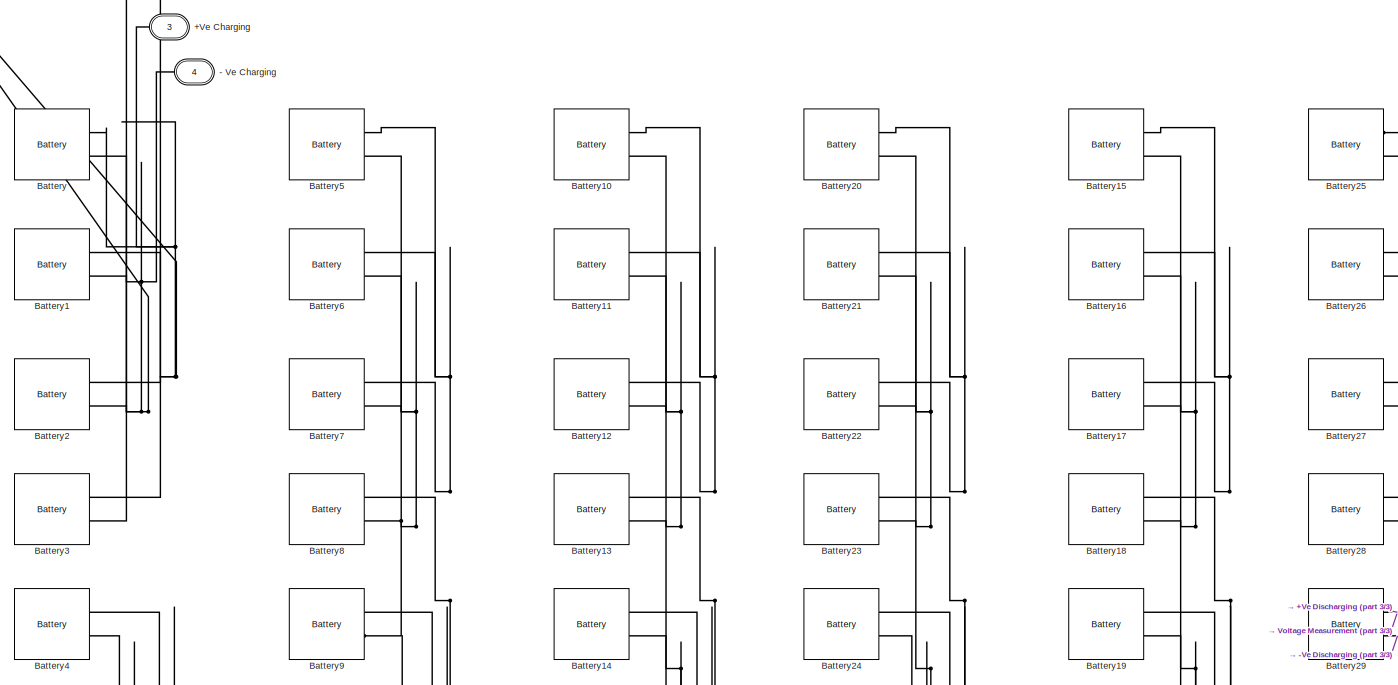
[diagram: battery bank  - part 1/3, full width, middle band]
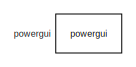
[diagram: battery bank  - part 2/3, top left region]
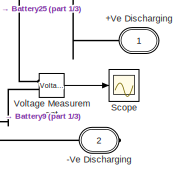
[diagram: battery bank  - part 3/3, bottom right region]
BLOCK [SubSystem] battery bank 
  Ports = [0, 0, 0, 0, 0, 2, 2]
  RequestExecContextInheritance = off
BLOCK [PMIOPort] battery bank /+Ve Charging
  Port = 3
  Side = Left
BLOCK [PMIOPort] battery bank /+Ve Discharging
  Side = Right
BLOCK [PMIOPort] battery bank /- Ve Charging
  Port = 4
  Side = Left
BLOCK [PMIOPort] battery bank /-Ve Discharging 
  Port = 2
  Side = Right
BLOCK [Reference] battery bank /Battery  REF=electricdrivelib/Extra Sources/Battery
  Ports = [0, 1, 0, 0, 0, 2]
  SourceBlock = electricdrivelib/Extra Sources/Battery
  SourceProductBaseCode = PS
  SourceProductName = Simscape Electrical
  SourceType = Battery
BLOCK [Reference] battery bank /Battery1  REF=electricdrivelib/Extra Sources/Battery
  Ports = [0, 1, 0, 0, 0, 2]
  SourceBlock = electricdrivelib/Extra Sources/Battery
  SourceProductBaseCode = PS
  SourceProductName = Simscape Electrical
  SourceType = Battery
BLOCK [Reference] battery bank /Battery10  REF=electricdrivelib/Extra Sources/Battery
  Ports = [0, 1, 0, 0, 0, 2]
  SourceBlock = electricdrivelib/Extra Sources/Battery
  SourceProductBaseCode = PS
  SourceProductName = Simscape Electrical
  SourceType = Battery
BLOCK [Reference] battery bank /Battery11  REF=electricdrivelib/Extra Sources/Battery
  Ports = [0, 1, 0, 0, 0, 2]
  SourceBlock = electricdrivelib/Extra Sources/Battery
  SourceProductBaseCode = PS
  SourceProductName = Simscape Electrical
  SourceType = Battery
BLOCK [Reference] battery bank /Battery12  REF=electricdrivelib/Extra Sources/Battery
  Ports = [0, 1, 0, 0, 0, 2]
  SourceBlock = electricdrivelib/Extra Sources/Battery
  SourceProductBaseCode = PS
  SourceProductName = Simscape Electrical
  SourceType = Battery
BLOCK [Reference] battery bank /Battery13  REF=electricdrivelib/Extra Sources/Battery
  Ports = [0, 1, 0, 0, 0, 2]
  SourceBlock = electricdrivelib/Extra Sources/Battery
  SourceProductBaseCode = PS
  SourceProductName = Simscape Electrical
  SourceType = Battery
BLOCK [Reference] battery bank /Battery14  REF=electricdrivelib/Extra Sources/Battery
  Ports = [0, 1, 0, 0, 0, 2]
  SourceBlock = electricdrivelib/Extra Sources/Battery
  SourceProductBaseCode = PS
  SourceProductName = Simscape Electrical
  SourceType = Battery
BLOCK [Reference] battery bank /Battery15  REF=electricdrivelib/Extra Sources/Battery
  Ports = [0, 1, 0, 0, 0, 2]
  SourceBlock = electricdrivelib/Extra Sources/Battery
  SourceProductBaseCode = PS
  SourceProductName = Simscape Electrical
  SourceType = Battery
BLOCK [Reference] battery bank /Battery16  REF=electricdrivelib/Extra Sources/Battery
  Ports = [0, 1, 0, 0, 0, 2]
  SourceBlock = electricdrivelib/Extra Sources/Battery
  SourceProductBaseCode = PS
  SourceProductName = Simscape Electrical
  SourceType = Battery
BLOCK [Reference] battery bank /Battery17  REF=electricdrivelib/Extra Sources/Battery
  Ports = [0, 1, 0, 0, 0, 2]
  SourceBlock = electricdrivelib/Extra Sources/Battery
  SourceProductBaseCode = PS
  SourceProductName = Simscape Electrical
  SourceType = Battery
BLOCK [Reference] battery bank /Battery18  REF=electricdrivelib/Extra Sources/Battery
  Ports = [0, 1, 0, 0, 0, 2]
  SourceBlock = electricdrivelib/Extra Sources/Battery
  SourceProductBaseCode = PS
  SourceProductName = Simscape Electrical
  SourceType = Battery
BLOCK [Reference] battery bank /Battery19  REF=electricdrivelib/Extra Sources/Battery
  Ports = [0, 1, 0, 0, 0, 2]
  SourceBlock = electricdrivelib/Extra Sources/Battery
  SourceProductBaseCode = PS
  SourceProductName = Simscape Electrical
  SourceType = Battery
BLOCK [Reference] battery bank /Battery2  REF=electricdrivelib/Extra Sources/Battery
  Ports = [0, 1, 0, 0, 0, 2]
  SourceBlock = electricdrivelib/Extra Sources/Battery
  SourceProductBaseCode = PS
  SourceProductName = Simscape Electrical
  SourceType = Battery
BLOCK [Reference] battery bank /Battery20  REF=electricdrivelib/Extra Sources/Battery
  Ports = [0, 1, 0, 0, 0, 2]
  SourceBlock = electricdrivelib/Extra Sources/Battery
  SourceProductBaseCode = PS
  SourceProductName = Simscape Electrical
  SourceType = Battery
BLOCK [Reference] battery bank /Battery21  REF=electricdrivelib/Extra Sources/Battery
  Ports = [0, 1, 0, 0, 0, 2]
  SourceBlock = electricdrivelib/Extra Sources/Battery
  SourceProductBaseCode = PS
  SourceProductName = Simscape Electrical
  SourceType = Battery
BLOCK [Reference] battery bank /Battery22  REF=electricdrivelib/Extra Sources/Battery
  Ports = [0, 1, 0, 0, 0, 2]
  SourceBlock = electricdrivelib/Extra Sources/Battery
  SourceProductBaseCode = PS
  SourceProductName = Simscape Electrical
  SourceType = Battery
BLOCK [Reference] battery bank /Battery23  REF=electricdrivelib/Extra Sources/Battery
  Ports = [0, 1, 0, 0, 0, 2]
  SourceBlock = electricdrivelib/Extra Sources/Battery
  SourceProductBaseCode = PS
  SourceProductName = Simscape Electrical
  SourceType = Battery
BLOCK [Reference] battery bank /Battery24  REF=electricdrivelib/Extra Sources/Battery
  Ports = [0, 1, 0, 0, 0, 2]
  SourceBlock = electricdrivelib/Extra Sources/Battery
  SourceProductBaseCode = PS
  SourceProductName = Simscape Electrical
  SourceType = Battery
BLOCK [Reference] battery bank /Battery25  REF=electricdrivelib/Extra Sources/Battery
  Ports = [0, 1, 0, 0, 0, 2]
  SourceBlock = electricdrivelib/Extra Sources/Battery
  SourceProductBaseCode = PS
  SourceProductName = Simscape Electrical
  SourceType = Battery
BLOCK [Reference] battery bank /Battery26  REF=electricdrivelib/Extra Sources/Battery
  Ports = [0, 1, 0, 0, 0, 2]
  SourceBlock = electricdrivelib/Extra Sources/Battery
  SourceProductBaseCode = PS
  SourceProductName = Simscape Electrical
  SourceType = Battery
BLOCK [Reference] battery bank /Battery27  REF=electricdrivelib/Extra Sources/Battery
  Ports = [0, 1, 0, 0, 0, 2]
  SourceBlock = electricdrivelib/Extra Sources/Battery
  SourceProductBaseCode = PS
  SourceProductName = Simscape Electrical
  SourceType = Battery
BLOCK [Reference] battery bank /Battery28  REF=electricdrivelib/Extra Sources/Battery
  Ports = [0, 1, 0, 0, 0, 2]
  SourceBlock = electricdrivelib/Extra Sources/Battery
  SourceProductBaseCode = PS
  SourceProductName = Simscape Electrical
  SourceType = Battery
BLOCK [Reference] battery bank /Battery29  REF=electricdrivelib/Extra Sources/Battery
  Ports = [0, 1, 0, 0, 0, 2]
  SourceBlock = electricdrivelib/Extra Sources/Battery
  SourceProductBaseCode = PS
  SourceProductName = Simscape Electrical
  SourceType = Battery
BLOCK [Reference] battery bank /Battery3  REF=electricdrivelib/Extra Sources/Battery
  Ports = [0, 1, 0, 0, 0, 2]
  SourceBlock = electricdrivelib/Extra Sources/Battery
  SourceProductBaseCode = PS
  SourceProductName = Simscape Electrical
  SourceType = Battery
BLOCK [Reference] battery bank /Battery4  REF=electricdrivelib/Extra Sources/Battery
  Ports = [0, 1, 0, 0, 0, 2]
  SourceBlock = electricdrivelib/Extra Sources/Battery
  SourceProductBaseCode = PS
  SourceProductName = Simscape Electrical
  SourceType = Battery
BLOCK [Reference] battery bank /Battery5  REF=electricdrivelib/Extra Sources/Battery
  Ports = [0, 1, 0, 0, 0, 2]
  SourceBlock = electricdrivelib/Extra Sources/Battery
  SourceProductBaseCode = PS
  SourceProductName = Simscape Electrical
  SourceType = Battery
BLOCK [Reference] battery bank /Battery6  REF=electricdrivelib/Extra Sources/Battery
  Ports = [0, 1, 0, 0, 0, 2]
  SourceBlock = electricdrivelib/Extra Sources/Battery
  SourceProductBaseCode = PS
  SourceProductName = Simscape Electrical
  SourceType = Battery
BLOCK [Reference] battery bank /Battery7  REF=electricdrivelib/Extra Sources/Battery
  Ports = [0, 1, 0, 0, 0, 2]
  SourceBlock = electricdrivelib/Extra Sources/Battery
  SourceProductBaseCode = PS
  SourceProductName = Simscape Electrical
  SourceType = Battery
BLOCK [Reference] battery bank /Battery8  REF=electricdrivelib/Extra Sources/Battery
  Ports = [0, 1, 0, 0, 0, 2]
  SourceBlock = electricdrivelib/Extra Sources/Battery
  SourceProductBaseCode = PS
  SourceProductName = Simscape Electrical
  SourceType = Battery
BLOCK [Reference] battery bank /Battery9  REF=electricdrivelib/Extra Sources/Battery
  Ports = [0, 1, 0, 0, 0, 2]
  SourceBlock = electricdrivelib/Extra Sources/Battery
  SourceProductBaseCode = PS
  SourceProductName = Simscape Electrical
  SourceType = Battery
BLOCK [Scope] battery bank /Scope
  Floating = off
  NumInputPorts = 1
  Ports = [1]
  ScopeSpecificationString = C++SS(StrPVP('Location','[132, 365, 512, 604]'),StrPVP('Open','off'),MxPVP('AxesTitles',54,'struct(''axes1'',''%<SignalLabel>'')'),MxPVP('ScopeGraphics',57,'struct(''FigureColor'',''[0.5 0.5 0.5]'',''AxesColor'',''[0 0 0]'',''AxesTickColor'',''[1 1 1]'',''LineColors'',''[1 1 0;1 0 1;0 1 1;1 0 0;0 1 0;0 0 1]'',''LineStyles'',''-|-|-|-|-|-'',''LineWidths'',''[0.5 0.5 0.5 0.5 0.5 0.5]'',''MarkerStyle...<+239ch>
BLOCK [Reference] battery bank /Voltage Measurement  REF=powerlib/Measurements/Voltage Measurement
  Ports = [0, 1, 0, 0, 0, 2]
  SourceBlock = powerlib/Measurements/Voltage Measurement
  SourceProductBaseCode = PS
  SourceProductName = Simscape Electrical
  SourceType = Voltage Measurement
  UserDataPersistent = on
BLOCK [Reference] battery bank /powergui  REF=powerlib/powergui
  Ports = []
  Priority = 1
  SourceBlock = powerlib/powergui
  SourceProductBaseCode = PS
  SourceProductName = Simscape Electrical
  SourceType = PSB option menu block
ANNOTATION (root): Tl
ANNOTATION 1 kW  PV Array 1: Diode characteristic Id=Isat*[exp(Vd/VT) -1] where: Id = diode cuurent (A) Vd = diode voltage (V) Isat = diode saturation current (A) VT = temperature voltage = k*T/q*Qd*Ncell*Nser T = cell temperature (K), k = Boltzman constant = 1.3806e-23 J.K^-1 q = electron charge = 1.6022e-19 C Qd = diode quality factor Ncell= number of series-connected cells per module Nser = number of series-connected modul...<+13ch>
ANNOTATION 1 kW  PV Array 1/Diode: Id=Isat*[exp(Vd/Vt)-1]
ANNOTATION DC Motor with Speed Controller : MOSFET
ANNOTATION DC Motor with Speed Controller : Smoothing Inductor 10mH
ANNOTATION DC Motor with Speed Controller : Torque of 10 N.m applied @ 1 sec
ANNOTATION DC Motor with Speed Controller : rad/sec
ANNOTATION DC Motor with Speed Controller : rpm
LINE 1 kW  PV Array 1/Add:1 -> 1 kW  PV Array 1/Bus Creator:1
LINE 1 kW  PV Array 1/Bus Creator:1 -> 1 kW  PV Array 1/m:1
LINE 1 kW  PV Array 1/Diode/Add:1 -> 1 kW  PV Array 1/Diode/Product:2
LINE 1 kW  PV Array 1/Diode/Is:1 -> 1 kW  PV Array 1/Diode/Product:1
LINE 1 kW  PV Array 1/Diode/Math Function:1 -> 1 kW  PV Array 1/Diode/Add:1
LINE 1 kW  PV Array 1/Diode/Product1:1 -> 1 kW  PV Array 1/Diode/Math Function:1
NET 1 kW  PV Array 1/Diode/Product:1 -> 1 kW  PV Array 1/Diode/Id:1, 1 kW  PV Array 1/Diode/Idiode:1
LINE 1 kW  PV Array 1/Diode/VT:1 -> 1 kW  PV Array 1/Diode/Product1:2
NET 1 kW  PV Array 1/Diode/Vd:1 -> 1 kW  PV Array 1/Diode/Product1:1, 1 kW  PV Array 1/Diode/Vdiode:1
LINE 1 kW  PV Array 1/Diode/one:1 -> 1 kW  PV Array 1/Diode/Add:2
LINE 1 kW  PV Array 1/Diode:1 -> 1 kW  PV Array 1/Add:1
LINE 1 kW  PV Array 1/Diode:2 -> 1 kW  PV Array 1/Bus Creator:3
NET 1 kW  PV Array 1/I_PV:1 -> 1 kW  PV Array 1/Bus Creator:2, 1 kW  PV Array 1/Rs_:1
LINE 1 kW  PV Array 1/Iph_:1 -> 1 kW  PV Array 1/Product1:1
NET 1 kW  PV Array 1/Ir:1 -> 1 kW  PV Array 1/Bus Creator:4, 1 kW  PV Array 1/t0_kW:1
LINE 1 kW  PV Array 1/Product1:1 -> 1 kW  PV Array 1/Iph:1
LINE 1 kW  PV Array 1/Rs_:1 -> 1 kW  PV Array 1/Add:2
LINE 1 kW  PV Array 1/t0_kW:1 -> 1 kW  PV Array 1/Product1:2
LINE 1 kW  PV Array 1:1 -> Scope2:1
NET Add:1 -> RMS3:1, Scope3:1
LINE Battery Management system using fuzzy logic controller/Add:1 -> Battery Management system using fuzzy logic controller/Fuzzy Logic Controller with Ruleviewer:1
NET Battery Management system using fuzzy logic controller/Demux:1 -> Battery Management system using fuzzy logic controller/Battery Control circuit:1, Battery Management system using fuzzy logic controller/Display2:1
NET Battery Management system using fuzzy logic controller/Demux:2 -> Battery Management system using fuzzy logic controller/Display5:1, Battery Management system using fuzzy logic controller/LOAD control circuit:1
LINE Battery Management system using fuzzy logic controller/Fuzzy Logic Controller with Ruleviewer:1 -> Battery Management system using fuzzy logic controller/Demux:1
NET Battery Management system using fuzzy logic controller/Load Power:1 -> Battery Management system using fuzzy logic controller/Add:2, Battery Management system using fuzzy logic controller/Display4:1, Battery Management system using fuzzy logic controller/Scope:2
NET Battery Management system using fuzzy logic controller/Renewable Generated Power:1 -> Battery Management system using fuzzy logic controller/Add:1, Battery Management system using fuzzy logic controller/Display3:1, Battery Management system using fuzzy logic controller/Scope:1
LINE Battery Management system using fuzzy logic controller:1 -> Breaker:1
LINE Battery Management system using fuzzy logic controller:2 -> Breaker1:1
LINE Battery bank 2/Voltage Measurement:1 -> Battery bank 2/Scope:1
LINE Current Measurement:1 -> Va_7:1
LINE DC Motor with Speed Controller /Add:1 -> DC Motor with Speed Controller /PID Controller:1
LINE DC Motor with Speed Controller /Bus Selector:1 -> DC Motor with Speed Controller /Gain:1
NET DC Motor with Speed Controller /Bus Selector:2 -> DC Motor with Speed Controller /Scope1:2, DC Motor with Speed Controller /current:1
LINE DC Motor with Speed Controller /Bus Selector:3 -> DC Motor with Speed Controller /Scope1:3
LINE DC Motor with Speed Controller /Clock:1 -> DC Motor with Speed Controller /Lookup Table:1
LINE DC Motor with Speed Controller /DC Machine:1 -> DC Motor with Speed Controller /Bus Selector:1
NET DC Motor with Speed Controller /Gain:1 -> DC Motor with Speed Controller /Add:2, DC Motor with Speed Controller /Mux:2, DC Motor with Speed Controller /Scope1:1, DC Motor with Speed Controller /Speed :1
LINE DC Motor with Speed Controller /Load Torque:1 -> DC Motor with Speed Controller /DC Machine:1
NET DC Motor with Speed Controller /Lookup Table:1 -> DC Motor with Speed Controller /Add:1, DC Motor with Speed Controller /Mux:1
LINE DC Motor with Speed Controller /Mux:1 -> DC Motor with Speed Controller /Ref & Actual Speed:1
LINE DC Motor with Speed Controller /PID Controller:1 -> DC Motor with Speed Controller /Saturation:1
LINE DC Motor with Speed Controller /Relational Operator:1 -> DC Motor with Speed Controller /Mosfet:1
LINE DC Motor with Speed Controller /Repeating Sequence:1 -> DC Motor with Speed Controller /Relational Operator:1
LINE DC Motor with Speed Controller /Saturation:1 -> DC Motor with Speed Controller /Relational Operator:2
LINE DC Motor with Speed Controller /Voltage Measurement:1 -> DC Motor with Speed Controller /Va:1
LINE DC Motor with Speed Controller :1 -> Va_4:1
NET DC Motor with Speed Controller :2 -> Product:2, Va_5:1
NET Product2:1 -> Add:2, Scope4:1
NET Product:1 -> RMS1:1, Va_2:1
NET RMS1:1 -> Battery Management system using fuzzy logic controller:2, Va_6:1
NET RMS3:1 -> Battery Management system using fuzzy logic controller:1, Scope1:1
NET S5:1 -> 1 kW  PV Array 1:1, Subsystem:1
NET Subsystem/Current Measurement8:1 -> Subsystem/Current :1, Subsystem/Mux12:2, Subsystem/Product8:1
LINE Subsystem/Demux4:1 -> Subsystem/Scope37:1
LINE Subsystem/Demux4:2 -> Subsystem/Mosfet5:1
LINE Subsystem/Ir:1 -> Subsystem/Mux14:1
NET Subsystem/MPPT Voltage 1:1 -> Subsystem/Mux14:2, Subsystem/PV voltage :1
NET Subsystem/MPPT Voltage :1 -> Subsystem/Mux12:1, Subsystem/Product8:2
LINE Subsystem/Mux12:1 -> Subsystem/Scope34:1
LINE Subsystem/Mux14:1 -> Subsystem/Scope1:1
LINE Subsystem/PWM Generator4:1 -> Subsystem/Demux4:1
LINE Subsystem/Product8:1 -> Subsystem/Power:1
LINE Subsystem5/Current Measurement8:1 -> Subsystem5/Mux12:2
NET Subsystem5/Demux4:1 -> Subsystem5/Mosfet5:1, Subsystem5/Scope37:1
LINE Subsystem5/MPPT Voltage 1:1 -> Subsystem5/Scope1:1
LINE Subsystem5/Mux12:1 -> Subsystem5/Scope34:1
LINE Subsystem5/PWM Generator4:1 -> Subsystem5/Demux4:1
LINE Subsystem5/Voltage :1 -> Subsystem5/Mux12:1
NET Subsystem:2 -> Product2:1, Scope21:1
LINE Subsystem:3 -> Scope23:1
NET Va1:1 -> Product2:2, Va_1:1
LINE Va2:1 -> Va_3:1
NET Va:1 -> Product:1, Va_:1
LINE Wind 3 KW, 50HZ, 440V/Bus Selector:1 -> Wind 3 KW, 50HZ, 440V/Generator Output Data:1
LINE Wind 3 KW, 50HZ, 440V/Bus Selector:2 -> Wind 3 KW, 50HZ, 440V/Generator Output Data:2
LINE Wind 3 KW, 50HZ, 440V/Bus Selector:3 -> Wind 3 KW, 50HZ, 440V/Generator Output Data:3
LINE Wind 3 KW, 50HZ, 440V/Bus Selector:4 -> Wind 3 KW, 50HZ, 440V/Generator Output Data:4
LINE Wind 3 KW, 50HZ, 440V/Bus Selector:5 -> Wind 3 KW, 50HZ, 440V/Generator Output Data:5
LINE Wind 3 KW, 50HZ, 440V/Constant3:1 -> Wind 3 KW, 50HZ, 440V/Manual Switch:2
LINE Wind 3 KW, 50HZ, 440V/Current Measurement2:1 -> Wind 3 KW, 50HZ, 440V/RMS:1
LINE Wind 3 KW, 50HZ, 440V/Generator speed (pu):1 -> Wind 3 KW, 50HZ, 440V/Wind Turbine1:1
NET Wind 3 KW, 50HZ, 440V/Manual Switch:1 -> Wind 3 KW, 50HZ, 440V/Wind Turbine1:3, Wind 3 KW, 50HZ, 440V/Wind speed and Pitch angle:2
LINE Wind 3 KW, 50HZ, 440V/Permanent Magnet Synchronous Machine:1 -> Wind 3 KW, 50HZ, 440V/Bus Selector:1
NET Wind 3 KW, 50HZ, 440V/Pitch angle:1 -> Wind 3 KW, 50HZ, 440V/Wind Turbine1:2, Wind 3 KW, 50HZ, 440V/Wind speed and Pitch angle:1
LINE Wind 3 KW, 50HZ, 440V/Product1:1 -> Wind 3 KW, 50HZ, 440V/V and I3:1
NET Wind 3 KW, 50HZ, 440V/Product2:1 -> Wind 3 KW, 50HZ, 440V/V and I5:1, Wind 3 KW, 50HZ, 440V/Wind Power:1
NET Wind 3 KW, 50HZ, 440V/RMS1:1 -> Wind 3 KW, 50HZ, 440V/Product2:2, Wind 3 KW, 50HZ, 440V/V and I1:1
NET Wind 3 KW, 50HZ, 440V/RMS:1 -> Wind 3 KW, 50HZ, 440V/Product2:1, Wind 3 KW, 50HZ, 440V/V and I4:1
LINE Wind 3 KW, 50HZ, 440V/Speed3:1 -> Wind 3 KW, 50HZ, 440V/Manual Switch:1
NET Wind 3 KW, 50HZ, 440V/Three-Phase V-I Measurement:1 -> Wind 3 KW, 50HZ, 440V/Product1:1, Wind 3 KW, 50HZ, 440V/V and I2:1
NET Wind 3 KW, 50HZ, 440V/Three-Phase V-I Measurement:2 -> Wind 3 KW, 50HZ, 440V/Product1:2, Wind 3 KW, 50HZ, 440V/V and I2:2
LINE Wind 3 KW, 50HZ, 440V/Voltage Measurement1:1 -> Wind 3 KW, 50HZ, 440V/RMS1:1
LINE Wind 3 KW, 50HZ, 440V/Wind Turbine1:1 -> Wind 3 KW, 50HZ, 440V/Permanent Magnet Synchronous Machine:1
NET Wind 3 KW, 50HZ, 440V:1 -> Add:1, Va_8:1
LINE battery bank /Voltage Measurement:1 -> battery bank /Scope:1
PLINE 1 kW  PV Array 1/+:RConn1 -- 1 kW  PV Array 1/I_PV:RConn1
PNET net1: 1 kW  PV Array 1/-:RConn1 -- 1 kW  PV Array 1/Diode:RConn1 -- 1 kW  PV Array 1/Iph:LConn1 -- 1 kW  PV Array 1/Rp:RConn1
PNET net2: 1 kW  PV Array 1/Diode/A:RConn1 -- 1 kW  PV Array 1/Diode/Id:LConn1 -- 1 kW  PV Array 1/Diode/Vd:LConn1
PNET net3: 1 kW  PV Array 1/Diode/Id:RConn1 -- 1 kW  PV Array 1/Diode/K:RConn1 -- 1 kW  PV Array 1/Diode/Vd:LConn2
PNET net4: 1 kW  PV Array 1/Diode:LConn1 -- 1 kW  PV Array 1/Iph:RConn1 -- 1 kW  PV Array 1/Rp:LConn1 -- 1 kW  PV Array 1/Rs:RConn1
PLINE 1 kW  PV Array 1/I_PV:LConn1 -- 1 kW  PV Array 1/Rs:LConn1
PLINE 1 kW  PV Array 1:RConn1 -- Subsystem:LConn1
PLINE 1 kW  PV Array 1:RConn2 -- Subsystem:LConn2
PLINE Battery bank 2/Battery1:LConn1 -- Battery bank 2/Battery:LConn2
PLINE Battery bank 2/Battery1:LConn2 -- Battery bank 2/Battery2:LConn1
PLINE Battery bank 2/Battery2:LConn2 -- Battery bank 2/Battery3:LConn1
PLINE Battery bank 2/Battery3:LConn2 -- Battery bank 2/Battery4:LConn1
PLINE Battery bank 2/Battery4:LConn2 -- Battery bank 2/Battery5:LConn1
PLINE Battery bank 2/Battery5:LConn2 -- Battery bank 2/Battery6:LConn1
PLINE Battery bank 2/Battery6:LConn2 -- Battery bank 2/Battery7:LConn1
PNET net5: Battery bank 2/Battery7:LConn2 -- Battery bank 2/Conn2:RConn1 -- Battery bank 2/Voltage Measurement:LConn2
PNET net6: Battery bank 2/Battery:LConn1 -- Battery bank 2/Conn1:RConn1 -- Battery bank 2/Voltage Measurement:LConn1
PLINE Breaker1:LConn1 -- Subsystem5:RConn1
PLINE Breaker1:RConn1 -- Diode1:LConn1
PLINE Breaker:LConn1 -- battery bank :LConn1
PLINE Breaker:RConn1 -- Diode:RConn1
PNET net7: Current Measurement:LConn1 -- Va2:LConn1 -- Wind 3 KW, 50HZ, 440V:RConn1
PLINE Current Measurement:RConn1 -- Diode3:LConn1
PNET net8: DC Motor with Speed Controller /+ Ve:RConn1 -- DC Motor with Speed Controller /Mosfet:LConn1 -- DC Motor with Speed Controller /V1:RConn1
PNET net9: DC Motor with Speed Controller /- Ve:RConn1 -- DC Motor with Speed Controller /D1:LConn1 -- DC Motor with Speed Controller /DC Machine:RConn1 -- DC Motor with Speed Controller /V1:LConn1 -- DC Motor with Speed Controller /Voltage Measurement:LConn2
PNET net10: DC Motor with Speed Controller /D1:RConn1 -- DC Motor with Speed Controller /Ls:LConn1 -- DC Motor with Speed Controller /Mosfet:RConn1 -- DC Motor with Speed Controller /Voltage Measurement:LConn1
PLINE DC Motor with Speed Controller /DC Machine:LConn1 -- DC Motor with Speed Controller /Ls:RConn1
PLINE DC Motor with Speed Controller /DC Machine:LConn2 -- DC Motor with Speed Controller /V:RConn1
PLINE DC Motor with Speed Controller /DC Machine:RConn2 -- DC Motor with Speed Controller /V:LConn1
PNET net11: DC Motor with Speed Controller :LConn1 -- Diode1:RConn1 -- Subsystem2:RConn1 -- Va:LConn1
PNET net12: DC Motor with Speed Controller :RConn1 -- Subsystem2:RConn2 -- Subsystem5:RConn2 -- Va:LConn2
PNET net13: Diode2:LConn1 -- Subsystem:RConn1 -- Va1:LConn1
PLINE Diode2:RConn1 -- Subsystem3:LConn1
PLINE Diode3:RConn1 -- Subsystem1:LConn1
PNET net14: Diode:LConn1 -- Subsystem1:RConn1 -- Subsystem2:LConn1 -- Subsystem3:RConn1
PNET net15: Subsystem/+ Ve:RConn1 -- Subsystem/Current Measurement8:RConn1 -- Subsystem/MPPT Voltage :LConn1 -- Subsystem/Series RLC Branch15:LConn1
PNET net16: Subsystem/- Ve:RConn1 -- Subsystem/MPPT Voltage 1:LConn2 -- Subsystem/MPPT Voltage :LConn2 -- Subsystem/Mosfet5:RConn1 -- Subsystem/PV - Ve:RConn1 -- Subsystem/Series RLC Branch13:RConn1 -- Subsystem/Series RLC Branch15:RConn1
PNET net17: Subsystem/Current Measurement8:LConn1 -- Subsystem/Diode9:RConn1 -- Subsystem/Series RLC Branch13:LConn1
PNET net18: Subsystem/Diode9:LConn1 -- Subsystem/Mosfet5:LConn1 -- Subsystem/Series RLC Branch14:RConn1
PNET net19: Subsystem/MPPT Voltage 1:LConn1 -- Subsystem/PV + Ve:RConn1 -- Subsystem/Series RLC Branch14:LConn1
PLINE Subsystem1/+ve 1:RConn1 -- Subsystem1/+ve :RConn1
PLINE Subsystem1/-ve 1:RConn1 -- Subsystem1/-ve 2:RConn1
PNET net20: Subsystem1:LConn2 -- Va2:LConn2 -- Wind 3 KW, 50HZ, 440V:RConn2
PNET net21: Subsystem1:RConn2 -- Subsystem2:LConn2 -- Subsystem3:RConn2 -- battery bank :LConn2
PLINE Subsystem2/+ve 1:RConn1 -- Subsystem2/+ve :RConn1
PLINE Subsystem2/-ve 1:RConn1 -- Subsystem2/-ve 2:RConn1
PLINE Subsystem3/+ve 1:RConn1 -- Subsystem3/+ve :RConn1
PLINE Subsystem3/-ve 1:RConn1 -- Subsystem3/-ve 2:RConn1
PNET net22: Subsystem3:LConn2 -- Subsystem:RConn2 -- Va1:LConn2
PNET net23: Subsystem5/+ Ve:RConn1 -- Subsystem5/Current Measurement8:RConn1 -- Subsystem5/Series RLC Branch15:LConn1 -- Subsystem5/Voltage :LConn1
PNET net24: Subsystem5/- Ve:RConn1 -- Subsystem5/B - Ve:RConn1 -- Subsystem5/MPPT Voltage 1:LConn2 -- Subsystem5/Mosfet5:RConn1 -- Subsystem5/Series RLC Branch13:RConn1 -- Subsystem5/Series RLC Branch15:RConn1 -- Subsystem5/Voltage :LConn2
PNET net25: Subsystem5/B + Ve:RConn1 -- Subsystem5/MPPT Voltage 1:LConn1 -- Subsystem5/Series RLC Branch14:LConn1
PNET net26: Subsystem5/Current Measurement8:LConn1 -- Subsystem5/Diode9:RConn1 -- Subsystem5/Series RLC Branch13:LConn1
PNET net27: Subsystem5/Diode9:LConn1 -- Subsystem5/Mosfet5:LConn1 -- Subsystem5/Series RLC Branch14:RConn1
PLINE Subsystem5:LConn1 -- battery bank :RConn1
PLINE Subsystem5:LConn2 -- battery bank :RConn2
PNET net28: Wind 3 KW, 50HZ, 440V/+ ve:RConn1 -- Wind 3 KW, 50HZ, 440V/Current Measurement1:RConn1 -- Wind 3 KW, 50HZ, 440V/Voltage Measurement1:LConn1
PNET net29: Wind 3 KW, 50HZ, 440V/- ve:RConn1 -- Wind 3 KW, 50HZ, 440V/Rectifier AC- DC:RConn2 -- Wind 3 KW, 50HZ, 440V/Voltage Measurement1:LConn2
PLINE Wind 3 KW, 50HZ, 440V/Current Measurement1:LConn1 -- Wind 3 KW, 50HZ, 440V/Rectifier AC- DC:RConn1
PLINE Wind 3 KW, 50HZ, 440V/Current Measurement2:LConn1 -- Wind 3 KW, 50HZ, 440V/Permanent Magnet Synchronous Machine:LConn3
PNET net30: Wind 3 KW, 50HZ, 440V/Current Measurement2:RConn1 -- Wind 3 KW, 50HZ, 440V/Rectifier AC- DC:LConn3 -- Wind 3 KW, 50HZ, 440V/Three-Phase V-I Measurement:LConn3
PNET net31: Wind 3 KW, 50HZ, 440V/Permanent Magnet Synchronous Machine:LConn1 -- Wind 3 KW, 50HZ, 440V/Rectifier AC- DC:LConn1 -- Wind 3 KW, 50HZ, 440V/Three-Phase V-I Measurement:LConn1
PNET net32: Wind 3 KW, 50HZ, 440V/Permanent Magnet Synchronous Machine:LConn2 -- Wind 3 KW, 50HZ, 440V/Rectifier AC- DC:LConn2 -- Wind 3 KW, 50HZ, 440V/Three-Phase V-I Measurement:LConn2
PLINE Wind 3 KW, 50HZ, 440V/RL :LConn1 -- Wind 3 KW, 50HZ, 440V/Three-Phase V-I Measurement:RConn1
PLINE Wind 3 KW, 50HZ, 440V/RL :LConn2 -- Wind 3 KW, 50HZ, 440V/Three-Phase V-I Measurement:RConn2
PLINE Wind 3 KW, 50HZ, 440V/RL :LConn3 -- Wind 3 KW, 50HZ, 440V/Three-Phase V-I Measurement:RConn3
PNET net33: battery bank /+Ve Charging:RConn1 -- battery bank /+Ve Discharging:RConn1 -- battery bank /Battery10:LConn1 -- battery bank /Battery11:LConn1 -- battery bank /Battery12:LConn1 -- battery bank /Battery13:LConn1 -- battery bank /Battery14:LConn1 -- battery bank /Battery15:LConn1 -- battery bank /Battery16:LConn1 -- battery bank /Battery17:LConn1 -- battery bank /Battery18:LConn1 -- battery bank /Battery19:LConn1 -- battery bank /Battery1:LConn1 -- battery bank /Battery20:LConn1 -- battery bank /Battery21:LConn1 -- battery bank /Battery22:LConn1 -- battery bank /Battery23:LConn1 -- battery bank /Battery24:LConn1 -- battery bank /Battery25:LConn1 -- battery bank /Battery26:LConn1 -- battery bank /Battery27:LConn1 -- battery bank /Battery28:LConn1 -- battery bank /Battery29:LConn1 -- battery bank /Battery2:LConn1 -- battery bank /Battery3:LConn1 -- battery bank /Battery4:LConn1 -- battery bank /Battery5:LConn1 -- battery bank /Battery6:LConn1 -- battery bank /Battery7:LConn1 -- battery bank /Battery8:LConn1 -- battery bank /Battery9:LConn1 -- battery bank /Battery:LConn1 -- battery bank /Voltage Measurement:LConn1
PNET net34: battery bank /- Ve Charging:RConn1 -- battery bank /-Ve Discharging :RConn1 -- battery bank /Battery10:LConn2 -- battery bank /Battery11:LConn2 -- battery bank /Battery12:LConn2 -- battery bank /Battery13:LConn2 -- battery bank /Battery14:LConn2 -- battery bank /Battery15:LConn2 -- battery bank /Battery16:LConn2 -- battery bank /Battery17:LConn2 -- battery bank /Battery18:LConn2 -- battery bank /Battery19:LConn2 -- battery bank /Battery1:LConn2 -- battery bank /Battery20:LConn2 -- battery bank /Battery21:LConn2 -- battery bank /Battery22:LConn2 -- battery bank /Battery23:LConn2 -- battery bank /Battery24:LConn2 -- battery bank /Battery25:LConn2 -- battery bank /Battery26:LConn2 -- battery bank /Battery27:LConn2 -- battery bank /Battery28:LConn2 -- battery bank /Battery29:LConn2 -- battery bank /Battery2:LConn2 -- battery bank /Battery3:LConn2 -- battery bank /Battery4:LConn2 -- battery bank /Battery5:LConn2 -- battery bank /Battery6:LConn2 -- battery bank /Battery7:LConn2 -- battery bank /Battery8:LConn2 -- battery bank /Battery9:LConn2 -- battery bank /Battery:LConn2 -- battery bank /Voltage Measurement:LConn2
note: NET lines group one-source signal fan-out (src -> all destinations, sorted); 1:1 wires keep LINE; PNET lines group multi-terminal physical nets as a canonical sorted terminal list (undirected conserving connections); 2-terminal nets keep the pairwise PLINE form
